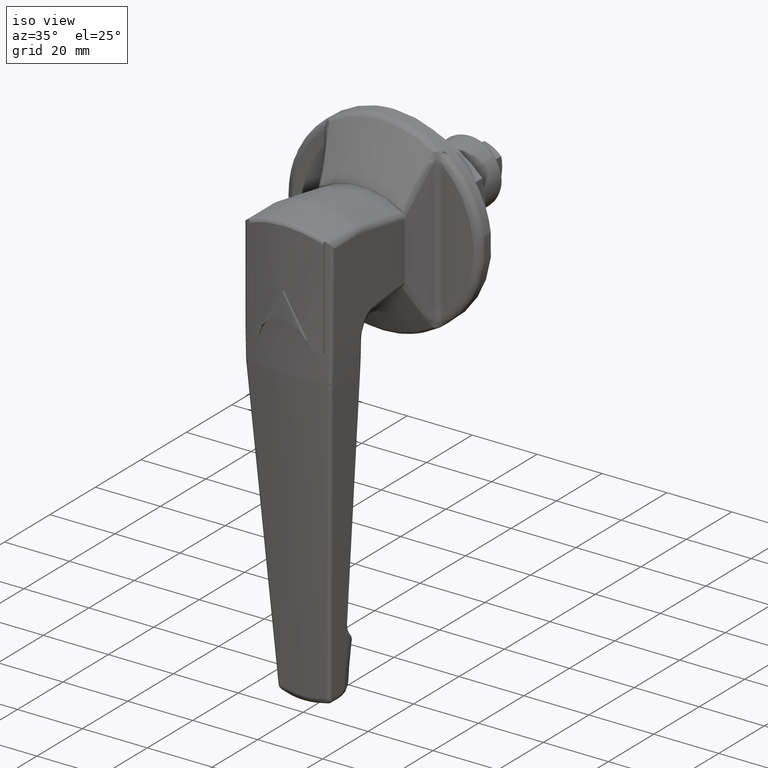
[diagram: clean part render]
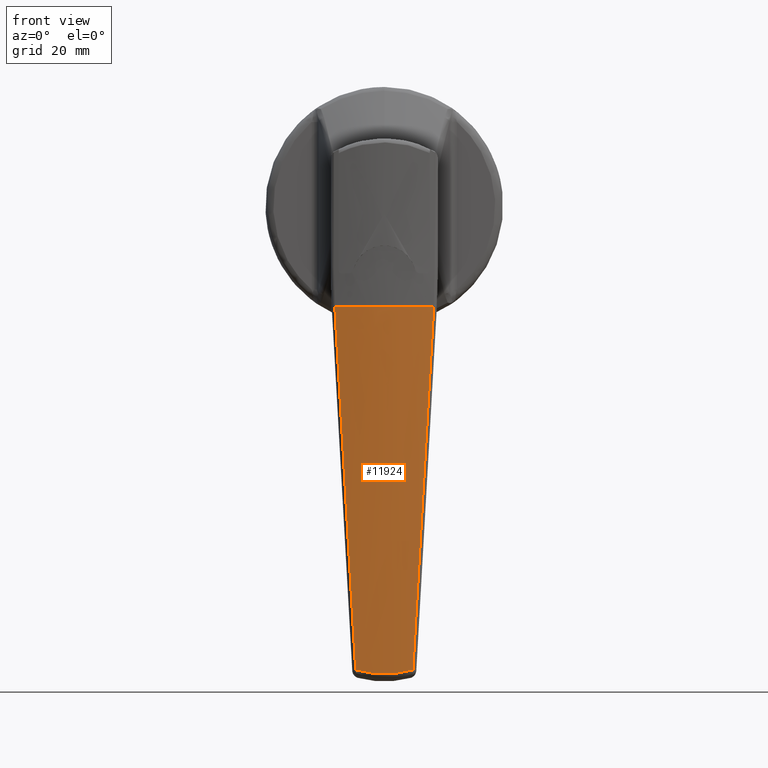
[diagram: tour spotlight — one face highlighted and labeled with its STEP entity id]
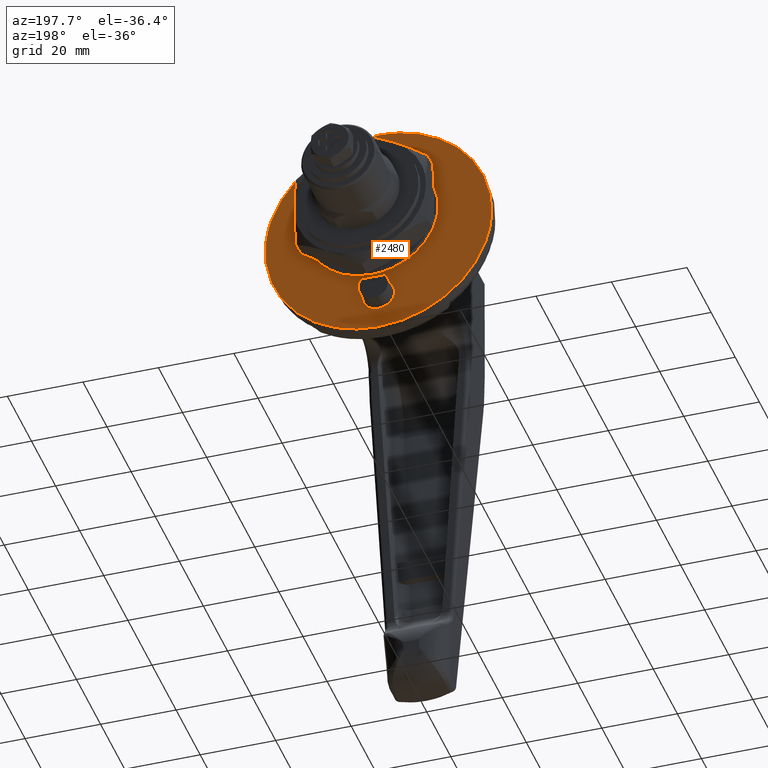
[diagram: tour spotlight — one face highlighted and labeled with its STEP entity id]
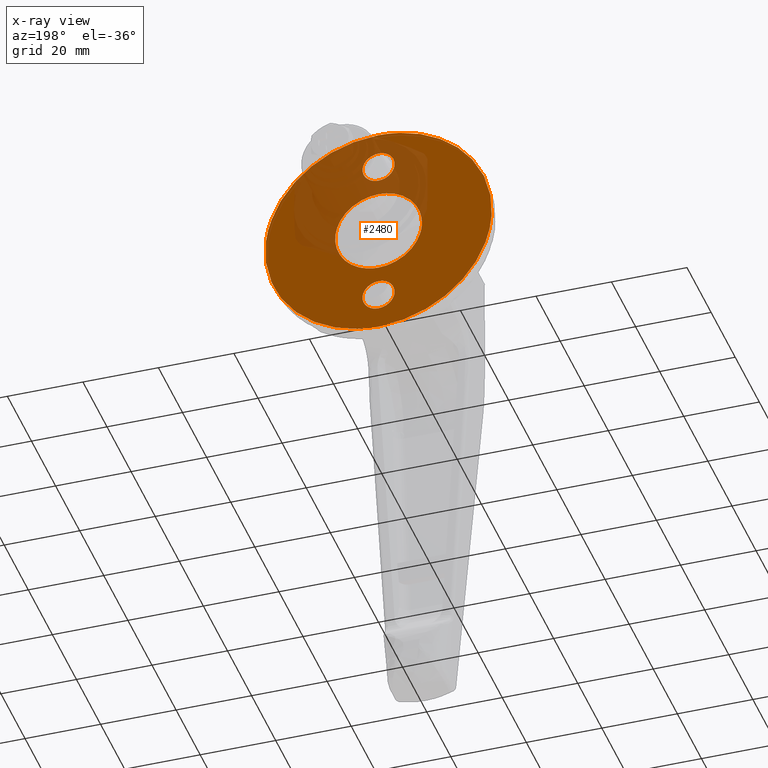
[diagram: x-ray of the same camera — body ghosted, this tour face saturated]
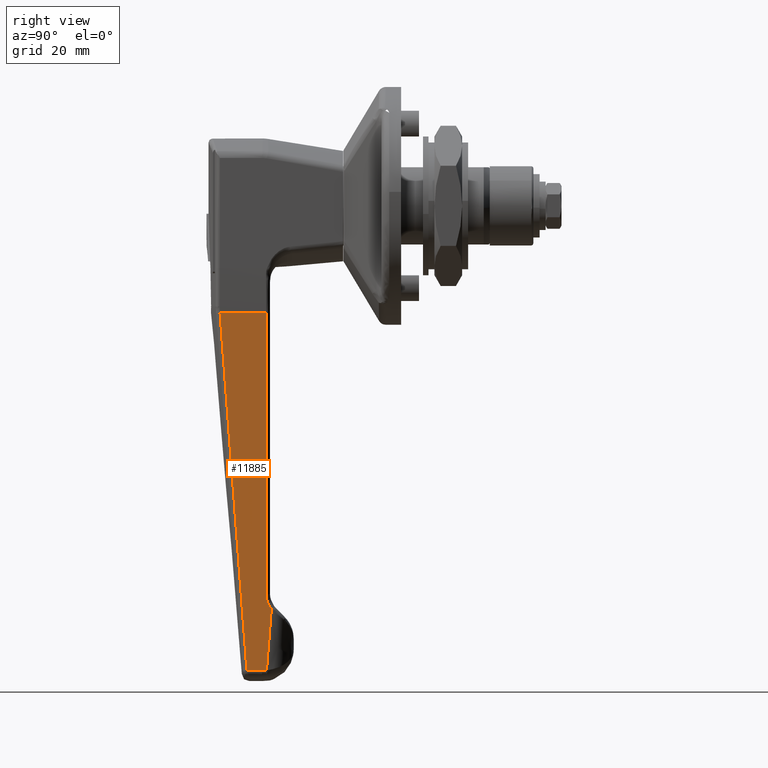
[diagram: tour spotlight — one face highlighted and labeled with its STEP entity id]
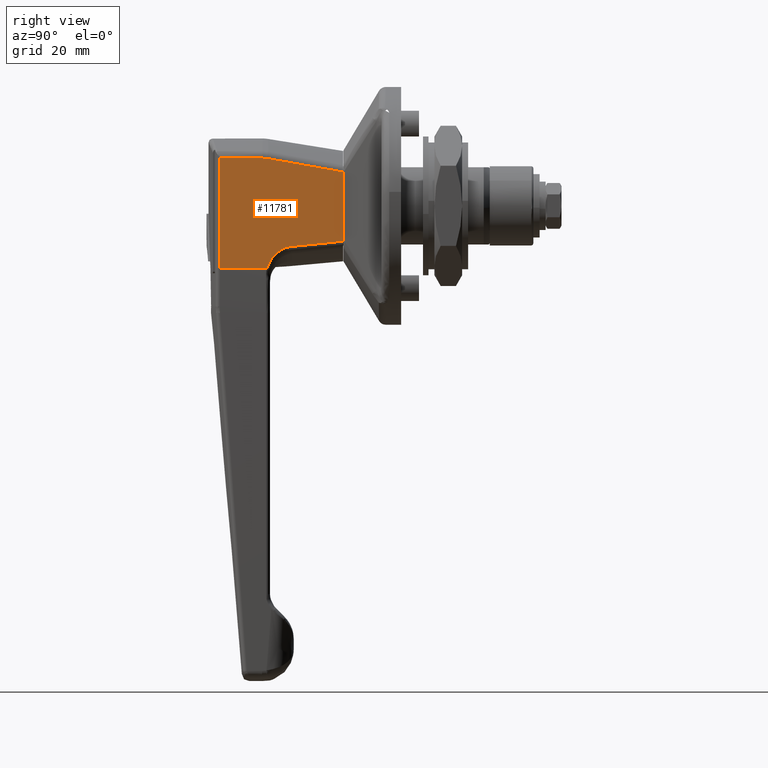
[diagram: tour spotlight — one face highlighted and labeled with its STEP entity id]
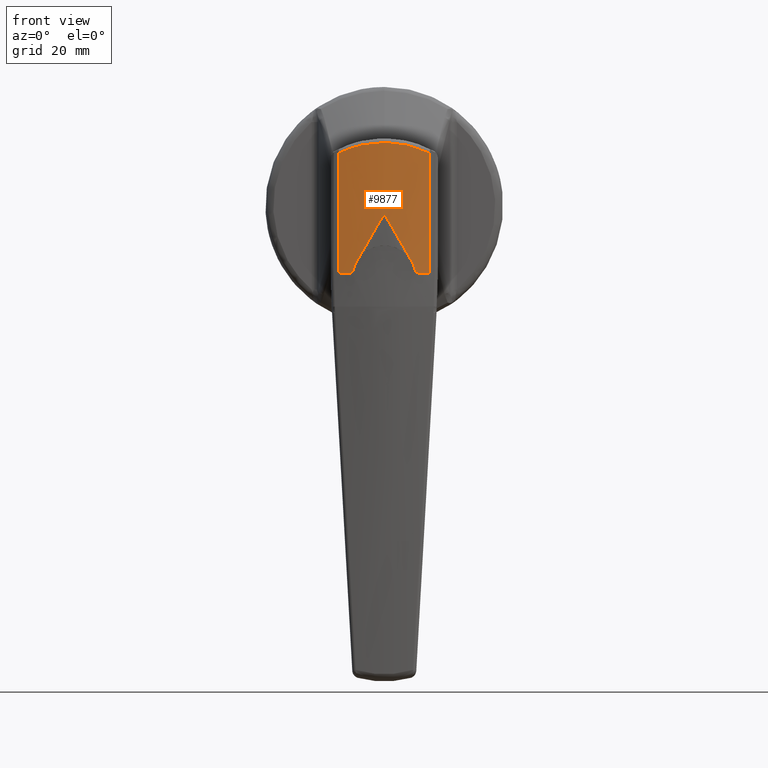
[diagram: tour spotlight — one face highlighted and labeled with its STEP entity id]
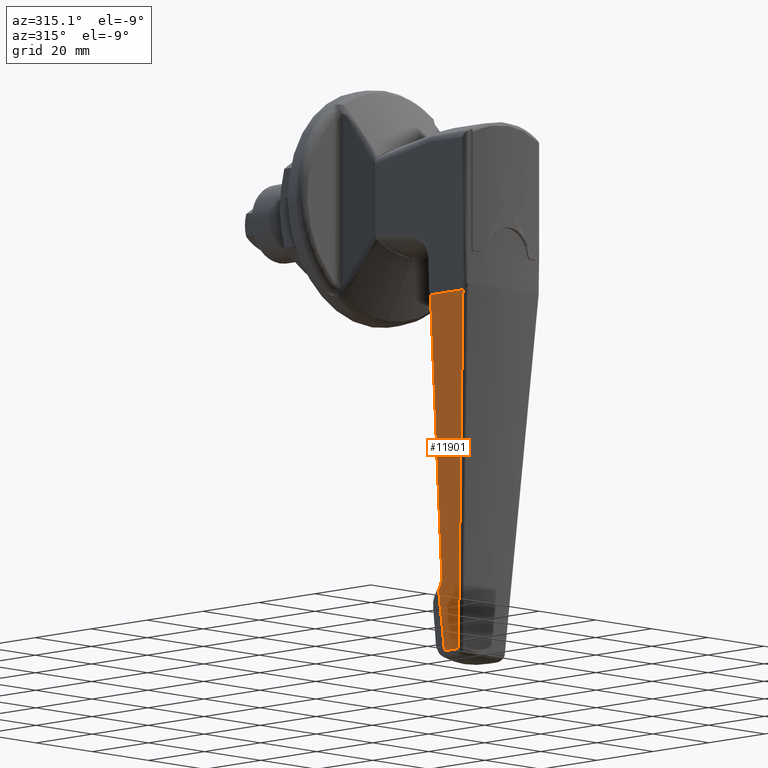
[diagram: tour spotlight — one face highlighted and labeled with its STEP entity id]
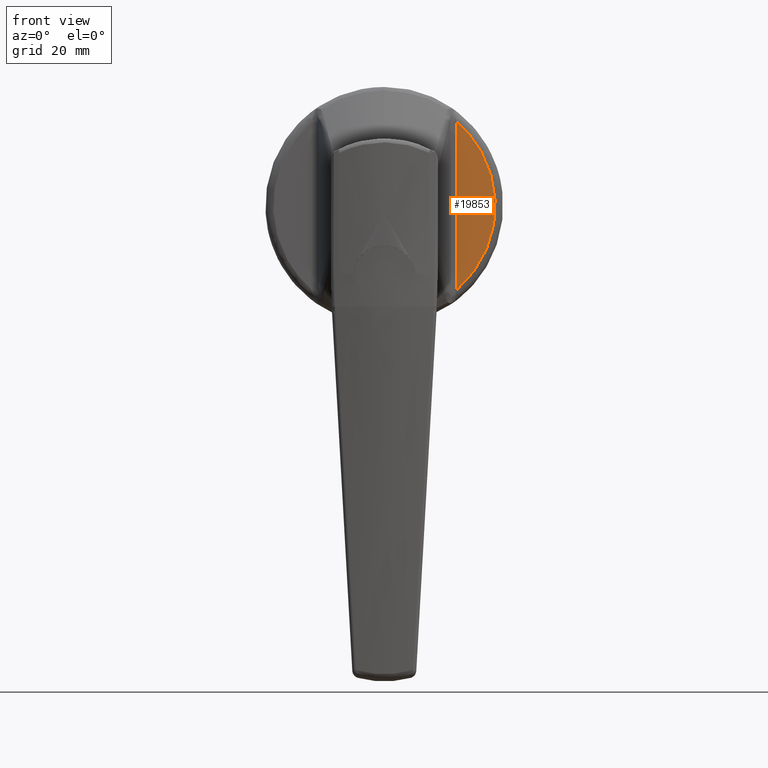
[diagram: tour spotlight — one face highlighted and labeled with its STEP entity id]
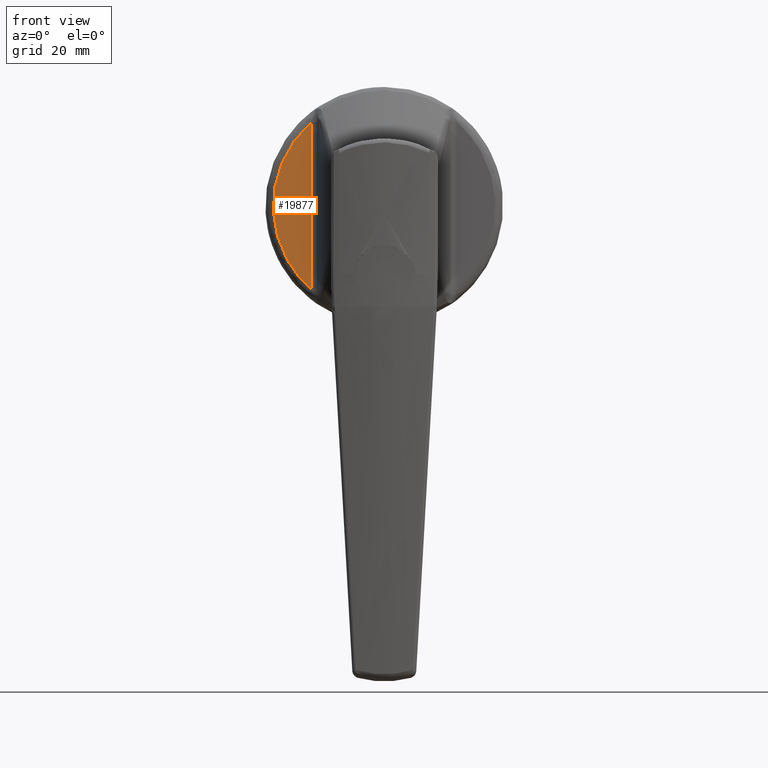
[diagram: tour spotlight — one face highlighted and labeled with its STEP entity id]
A machine part: a face-by-face anatomy tour. The part has 296 B-rep faces; the first image is the clean iso view, then the 8 largest visible faces are spotlighted one at a time (largest first), each with its STEP entity span.

Face 1 — front view, entity #11924. In plain terms, the highlighted face is a freeform B-spline surface patch.
Definition (entity closure, byte-faithful):
#6891=CARTESIAN_POINT('',(-39.909857933490898,7.213790736045410,-117.084794618973010));
#6892=VERTEX_POINT('',#6891);
#6893=CARTESIAN_POINT('',(-39.909857933490848,-7.213790736045429,-117.084794618973210));
#6894=VERTEX_POINT('',#6893);
#6895=CARTESIAN_POINT('',(-39.909857933490898,7.213790736045410,-117.084794618973010));
#6896=CARTESIAN_POINT('',(-39.965843515855482,6.627496043275496,-117.265314138344390));
#6897=CARTESIAN_POINT('',(-40.015422400020782,6.037432898611465,-117.422799866397600));
#6898=CARTESIAN_POINT('',(-40.101143519574478,4.849919290424683,-117.692897461019400));
#6899=CARTESIAN_POINT('',(-40.173429968805053,3.655017708117561,-117.918116204373310));
#6900=CARTESIAN_POINT('',(-40.217692363016852,2.445391861550925,-118.054288793521200));
#6901=CARTESIAN_POINT('',(-40.247386397903689,1.228310382515253,-118.145493331188600));
#6902=CARTESIAN_POINT('',(-40.254949478572968,0.616020772614438,-118.168614020875400));
#6903=CARTESIAN_POINT('',(-40.254948446701739,-0.616146847933066,-118.168610861538800));
#6904=CARTESIAN_POINT('',(-40.247384865291657,-1.228396495509741,-118.145488634921800));
#6905=CARTESIAN_POINT('',(-40.217690462913602,-2.445446443959838,-118.054282946281700));
#6906=CARTESIAN_POINT('',(-40.173427575749479,-3.655046255342052,-117.918111156287590));
#6907=CARTESIAN_POINT('',(-40.101142635036943,-4.849932405872104,-117.692894685629700));
#6908=CARTESIAN_POINT('',(-40.015422139097353,-6.037435651476795,-117.422799032568610));
#6909=CARTESIAN_POINT('',(-39.965843504135862,-6.627496166005619,-117.265314100555900));
#6910=CARTESIAN_POINT('',(-39.909857933490848,-7.213790736045453,-117.084794618973010));
#6911=B_SPLINE_CURVE_WITH_KNOTS('',3,(#6895,#6896,#6897,#6898,#6899,#6900,#6901,#6902,#6903,#6904,#6905,#6906,#6907,#6908,#6909,#6910),.UNSPECIFIED.,.F.,.U.,(4,2,1,2,2,2,1,2,4),(0.0,0.125000000000000,0.250000000000000,0.375000000000000,0.500000000000000,0.625000000000000,0.750000000000000,0.875000000000000,1.0),.UNSPECIFIED.);
#6912=EDGE_CURVE('',#6892,#6894,#6911,.T.);
#7845=CARTESIAN_POINT('',(-46.785711378948093,-12.473112755895841,-25.431464014060850));
#7846=VERTEX_POINT('',#7845);
#7877=CARTESIAN_POINT('',(-46.785711378948093,12.473112755895841,-25.431464014060751));
#7878=VERTEX_POINT('',#7877);
#7892=CARTESIAN_POINT('',(-46.785711378948093,-12.473112755895841,-25.431464014060850));
#7893=CARTESIAN_POINT('',(-49.436443152901298,4.163336E-014,-25.545265562781950));
#7894=CARTESIAN_POINT('',(-46.785711378948093,12.473112755895841,-25.431464014060751));
#7902=(BOUNDED_CURVE()B_SPLINE_CURVE(2,(#7892,#7893,#7894),.UNSPECIFIED.,.F.,.U.)CURVE()GEOMETRIC_REPRESENTATION_ITEM()QUASI_UNIFORM_CURVE()RATIONAL_B_SPLINE_CURVE((1.0,0.978153228478527,1.0))REPRESENTATION_ITEM(''));
#7903=EDGE_CURVE('',#7846,#7878,#7902,.T.);
#8125=CARTESIAN_POINT('',(-46.671376794683603,12.389688932985900,-26.992386918501399));
#8126=VERTEX_POINT('',#8125);
#8140=CARTESIAN_POINT('',(-46.785711378948093,12.473112755895841,-25.431464014060751));
#8141=CARTESIAN_POINT('',(-46.747170335792632,12.447384159813049,-25.951851318711050));
#8142=CARTESIAN_POINT('',(-46.709061837354817,12.419576423002461,-26.472159186351970));
#8143=CARTESIAN_POINT('',(-46.671376794683603,12.389688932985900,-26.992386918501399));
#8144=QUASI_UNIFORM_CURVE('',3,(#8140,#8141,#8142,#8143),.UNSPECIFIED.,.F.,.U.);
#8145=EDGE_CURVE('',#7878,#8126,#8144,.T.);
#8178=CARTESIAN_POINT('',(-46.671376794683603,-12.389688932985900,-26.992386918501602));
#8179=VERTEX_POINT('',#8178);
#8203=CARTESIAN_POINT('',(-46.671376794683603,-12.389688932985880,-26.992386918501602));
#8204=CARTESIAN_POINT('',(-46.709061837354817,-12.419576423002439,-26.472159186352140));
#8205=CARTESIAN_POINT('',(-46.747170335792617,-12.447384159813030,-25.951851318711189));
#8206=CARTESIAN_POINT('',(-46.785711378948093,-12.473112755895819,-25.431464014060850));
#8207=QUASI_UNIFORM_CURVE('',3,(#8203,#8204,#8205,#8206),.UNSPECIFIED.,.F.,.U.);
#8208=EDGE_CURVE('',#8179,#7846,#8207,.T.);
#8410=CARTESIAN_POINT('',(-46.671376794683603,12.389688932985900,-26.992386918501399));
#8411=CARTESIAN_POINT('',(-43.431909587914078,9.820511961474951,-71.712004010442200));
#8412=CARTESIAN_POINT('',(-39.909857933490898,7.213790736045410,-117.084794618973010));
#8420=(BOUNDED_CURVE()B_SPLINE_CURVE(2,(#8410,#8411,#8412),.UNSPECIFIED.,.F.,.U.)CURVE()GEOMETRIC_REPRESENTATION_ITEM()QUASI_UNIFORM_CURVE()RATIONAL_B_SPLINE_CURVE((1.0,0.999043781706573,1.0))REPRESENTATION_ITEM(''));
#8421=EDGE_CURVE('',#8126,#6892,#8420,.T.);
#8475=CARTESIAN_POINT('',(-39.909857933490827,-7.213790736045418,-117.084794618973310));
#8476=CARTESIAN_POINT('',(-43.431909587914241,-9.820511961475102,-71.712004010439870));
#8477=CARTESIAN_POINT('',(-46.671376794683603,-12.389688932985900,-26.992386918501602));
#8485=(BOUNDED_CURVE()B_SPLINE_CURVE(2,(#8475,#8476,#8477),.UNSPECIFIED.,.F.,.U.)CURVE()GEOMETRIC_REPRESENTATION_ITEM()QUASI_UNIFORM_CURVE()RATIONAL_B_SPLINE_CURVE((1.0,0.999043781706486,1.0))REPRESENTATION_ITEM(''));
#8486=EDGE_CURVE('',#6894,#8179,#8485,.T.);
#11902=CARTESIAN_POINT('',(-46.715993278810821,13.687617565856964,-23.037332219717879));
#11903=CARTESIAN_POINT('',(-38.477526869705727,13.687617565856964,-120.410177636956530));
#11904=CARTESIAN_POINT('',(-49.911704302739508,-0.000204496160791,-23.307713123254477));
#11905=CARTESIAN_POINT('',(-41.673237893634422,-0.000204496160792,-120.680558540493250));
#11906=CARTESIAN_POINT('',(-46.715902759079732,-13.688005272834207,-23.037324561075870));
#11907=CARTESIAN_POINT('',(-38.477436349974646,-13.688005272834207,-120.410169978314530));
#11915=(BOUNDED_SURFACE()B_SPLINE_SURFACE(1,2,((#11902,#11904,#11906),(#11903,#11905,#11907)),.UNSPECIFIED.,.F.,.F.,.U.)B_SPLINE_SURFACE_WITH_KNOTS((2,2),(3,3),(0.0,97.720741674546346),(0.0,27.741383964731870),.UNSPECIFIED.)GEOMETRIC_REPRESENTATION_ITEM()RATIONAL_B_SPLINE_SURFACE(((0.997388975650527,0.970926280731550,0.997055853653611),(0.997388975650527,0.970926280731550,0.997055853653611)))REPRESENTATION_ITEM('')SURFACE());
#11916=ORIENTED_EDGE('',*,*,#8421,.T.);
#11917=ORIENTED_EDGE('',*,*,#6912,.T.);
#11918=ORIENTED_EDGE('',*,*,#8486,.T.);
#11919=ORIENTED_EDGE('',*,*,#8208,.T.);
#11920=ORIENTED_EDGE('',*,*,#7903,.T.);
#11921=ORIENTED_EDGE('',*,*,#8145,.T.);
#11922=EDGE_LOOP('',(#11916,#11917,#11918,#11919,#11920,#11921));
#11923=FACE_OUTER_BOUND('',#11922,.T.);
#11924=ADVANCED_FACE('',(#11923),#11915,.T.);

Face 2 — auxiliary view, entity #2480. An x-ray twin of the same camera follows (body ghosted, this face saturated) — the face is partly hidden behind the body. In plain terms, the highlighted face is a freeform B-spline surface patch.
Definition (entity closure, byte-faithful):
#1729=CARTESIAN_POINT('',(-1.060783E-011,-29.790290636046912,3.540986207848234));
#1730=VERTEX_POINT('',#1729);
#1731=CARTESIAN_POINT('',(0.0,0.0,-30.000000069754488));
#1732=VERTEX_POINT('',#1731);
#1733=CARTESIAN_POINT('',(-1.060783E-011,-29.790290636046908,3.540986207848234));
#1734=CARTESIAN_POINT('',(0.0,-30.0,1.776702923291119));
#1735=CARTESIAN_POINT('',(0.0,-30.0,-0.000000069754492));
#1736=CARTESIAN_POINT('',(0.0,-29.999999999999993,-30.000000069754478));
#1737=CARTESIAN_POINT('',(0.0,0.0,-30.000000069754488));
#1745=(BOUNDED_CURVE()B_SPLINE_CURVE(2,(#1733,#1734,#1735,#1736,#1737),.UNSPECIFIED.,.F.,.U.)B_SPLINE_CURVE_WITH_KNOTS((3,2,3),(0.229562704763104,0.250000000000000,0.500000000000000),.UNSPECIFIED.)CURVE()GEOMETRIC_REPRESENTATION_ITEM()RATIONAL_B_SPLINE_CURVE((0.956027207442871,0.976056219256898,1.0,0.707106781186547,1.0))REPRESENTATION_ITEM(''));
#1746=EDGE_CURVE('',#1730,#1732,#1745,.T.);
#1787=CARTESIAN_POINT('',(2.946005E-012,29.944045039688021,-1.831438482810666));
#1788=VERTEX_POINT('',#1787);
#1794=CARTESIAN_POINT('',(0.0,0.0,-30.000000069754488));
#1795=CARTESIAN_POINT('',(0.0,28.221198788878148,-30.000000069754496));
#1796=CARTESIAN_POINT('',(2.946005E-012,29.944045039688028,-1.831438482810666));
#1804=(BOUNDED_CURVE()B_SPLINE_CURVE(2,(#1794,#1795,#1796),.UNSPECIFIED.,.F.,.U.)B_SPLINE_CURVE_WITH_KNOTS((3,3),(0.500000000000000,0.739333064655407),.UNSPECIFIED.)CURVE()GEOMETRIC_REPRESENTATION_ITEM()RATIONAL_B_SPLINE_CURVE((1.0,0.719603873298358,0.976072261164795))REPRESENTATION_ITEM(''));
#1805=EDGE_CURVE('',#1732,#1788,#1804,.T.);
#1828=CARTESIAN_POINT('',(0.0,0.0,29.999999930245512));
#1829=VERTEX_POINT('',#1828);
#1830=CARTESIAN_POINT('',(0.0,0.0,29.999999930245512));
#1831=CARTESIAN_POINT('',(0.0,-26.645272493937874,29.999999930245497));
#1832=CARTESIAN_POINT('',(-1.060783E-011,-29.790290636046908,3.540986207848234));
#1840=(BOUNDED_CURVE()B_SPLINE_CURVE(2,(#1830,#1831,#1832),.UNSPECIFIED.,.F.,.U.)B_SPLINE_CURVE_WITH_KNOTS((3,3),(0.0,0.229562704763104),.UNSPECIFIED.)CURVE()GEOMETRIC_REPRESENTATION_ITEM()RATIONAL_B_SPLINE_CURVE((1.0,0.731050561929649,0.956027207442871))REPRESENTATION_ITEM(''));
#1841=EDGE_CURVE('',#1829,#1730,#1840,.T.);
#1843=CARTESIAN_POINT('',(2.946005E-012,29.944045039688028,-1.831438482810666));
#1844=CARTESIAN_POINT('',(0.0,30.0,-0.916574057300928));
#1845=CARTESIAN_POINT('',(0.0,30.0,-0.000000069754492));
#1846=CARTESIAN_POINT('',(0.0,29.999999999999993,29.999999930245508));
#1847=CARTESIAN_POINT('',(0.0,0.0,29.999999930245512));
#1855=(BOUNDED_CURVE()B_SPLINE_CURVE(2,(#1843,#1844,#1845,#1846,#1847),.UNSPECIFIED.,.F.,.U.)B_SPLINE_CURVE_WITH_KNOTS((3,2,3),(0.739333064655407,0.750000000000000,1.0),.UNSPECIFIED.)CURVE()GEOMETRIC_REPRESENTATION_ITEM()RATIONAL_B_SPLINE_CURVE((0.976072261164795,0.987502907888189,1.0,0.707106781186547,1.0))REPRESENTATION_ITEM(''));
#1856=EDGE_CURVE('',#1788,#1829,#1855,.T.);
#1915=CARTESIAN_POINT('',(1.597178E-017,-11.419609553163440,1.357393698710279));
#1916=VERTEX_POINT('',#1915);
#1917=CARTESIAN_POINT('',(0.0,0.0,-11.500000000000000));
#1918=VERTEX_POINT('',#1917);
#1919=CARTESIAN_POINT('',(1.597178E-017,-11.419609553163438,1.357393698710280));
#1920=CARTESIAN_POINT('',(0.0,-11.499999999999996,0.681077376156188));
#1921=CARTESIAN_POINT('',(0.0,-11.500000000000000,0.0));
#1922=CARTESIAN_POINT('',(0.0,-11.500000000000000,-11.500000000000000));
#1923=CARTESIAN_POINT('',(0.0,0.0,-11.500000000000000));
#1931=(BOUNDED_CURVE()B_SPLINE_CURVE(2,(#1919,#1920,#1921,#1922,#1923),.UNSPECIFIED.,.F.,.U.)B_SPLINE_CURVE_WITH_KNOTS((3,2,3),(0.229562473510981,0.250000000000000,0.500000000000000),.UNSPECIFIED.)CURVE()GEOMETRIC_REPRESENTATION_ITEM()RATIONAL_B_SPLINE_CURVE((0.956026754178745,0.976055948328184,1.0,0.707106781186548,1.0))REPRESENTATION_ITEM(''));
#1932=EDGE_CURVE('',#1916,#1918,#1931,.T.);
#1934=CARTESIAN_POINT('',(1.387779E-017,11.478550181837401,-0.702058204880966));
#1935=VERTEX_POINT('',#1934);
#1936=CARTESIAN_POINT('',(0.0,0.0,-11.500000000000000));
#1937=CARTESIAN_POINT('',(0.0,10.818119768980949,-11.499999999999998));
#1938=CARTESIAN_POINT('',(1.387779E-017,11.478550181837393,-0.702058204880966));
#1946=(BOUNDED_CURVE()B_SPLINE_CURVE(2,(#1936,#1937,#1938),.UNSPECIFIED.,.F.,.U.)B_SPLINE_CURVE_WITH_KNOTS((3,3),(0.500000000000000,0.739332962235050),.UNSPECIFIED.)CURVE()GEOMETRIC_REPRESENTATION_ITEM()RATIONAL_B_SPLINE_CURVE((1.0,0.719603993291271,0.976072041658375))REPRESENTATION_ITEM(''));
#1947=EDGE_CURVE('',#1918,#1935,#1946,.T.);
#2014=CARTESIAN_POINT('',(0.0,0.0,11.500000000000000));
#2015=VERTEX_POINT('',#2014);
#2016=CARTESIAN_POINT('',(0.0,0.0,11.500000000000000));
#2017=CARTESIAN_POINT('',(0.0,-10.214007048156901,11.499999999999998));
#2018=CARTESIAN_POINT('',(1.597178E-017,-11.419609553163435,1.357393698710279));
#2026=(BOUNDED_CURVE()B_SPLINE_CURVE(2,(#2016,#2017,#2018),.UNSPECIFIED.,.F.,.U.)B_SPLINE_CURVE_WITH_KNOTS((3,3),(0.0,0.229562473510981),.UNSPECIFIED.)CURVE()GEOMETRIC_REPRESENTATION_ITEM()RATIONAL_B_SPLINE_CURVE((1.0,0.731050832858364,0.956026754178745))REPRESENTATION_ITEM(''));
#2027=EDGE_CURVE('',#2015,#1916,#2026,.T.);
#2061=CARTESIAN_POINT('',(1.387779E-017,11.478550181837399,-0.702058204880966));
#2062=CARTESIAN_POINT('',(0.0,11.499999999999996,-0.351356778164529));
#2063=CARTESIAN_POINT('',(0.0,11.500000000000000,0.0));
#2064=CARTESIAN_POINT('',(0.0,11.500000000000000,11.500000000000000));
#2065=CARTESIAN_POINT('',(0.0,0.0,11.500000000000000));
#2073=(BOUNDED_CURVE()B_SPLINE_CURVE(2,(#2061,#2062,#2063,#2064,#2065),.UNSPECIFIED.,.F.,.U.)B_SPLINE_CURVE_WITH_KNOTS((3,2,3),(0.739332962235050,0.750000000000000,1.0),.UNSPECIFIED.)CURVE()GEOMETRIC_REPRESENTATION_ITEM()RATIONAL_B_SPLINE_CURVE((0.976072041658375,0.987502787895277,1.0,0.707106781186548,1.0))REPRESENTATION_ITEM(''));
#2074=EDGE_CURVE('',#1935,#2015,#2073,.T.);
#2101=CARTESIAN_POINT('',(1.597178E-017,-4.220290471602029,20.501645557461671));
#2102=VERTEX_POINT('',#2101);
#2103=CARTESIAN_POINT('',(0.0,0.0,15.749999930245499));
#2104=VERTEX_POINT('',#2103);
#2105=CARTESIAN_POINT('',(1.597178E-017,-4.220290471602029,20.501645557461668));
#2106=CARTESIAN_POINT('',(0.0,-4.250000000000000,20.251702570064619));
#2107=CARTESIAN_POINT('',(0.0,-4.250000000000000,19.999999930245501));
#2108=CARTESIAN_POINT('',(0.0,-4.249999999999999,15.749999930245508));
#2109=CARTESIAN_POINT('',(0.0,0.0,15.749999930245499));
#2117=(BOUNDED_CURVE()B_SPLINE_CURVE(2,(#2105,#2106,#2107,#2108,#2109),.UNSPECIFIED.,.F.,.U.)B_SPLINE_CURVE_WITH_KNOTS((3,2,3),(0.229562463109850,0.250000000000000,0.500000000000000),.UNSPECIFIED.)CURVE()GEOMETRIC_REPRESENTATION_ITEM()RATIONAL_B_SPLINE_CURVE((0.956026733792104,0.976055936142501,1.0,0.707106781186548,1.0))REPRESENTATION_ITEM(''));
#2118=EDGE_CURVE('',#2102,#2104,#2117,.T.);
#2120=CARTESIAN_POINT('',(-1.023487E-016,4.242072893244577,19.740543636431742));
#2121=VERTEX_POINT('',#2120);
#2122=CARTESIAN_POINT('',(0.0,0.0,15.749999930245499));
#2123=CARTESIAN_POINT('',(0.0,3.998000782856122,15.749999930245503));
#2124=CARTESIAN_POINT('',(-1.023487E-016,4.242072893244577,19.740543636431735));
#2132=(BOUNDED_CURVE()B_SPLINE_CURVE(2,(#2122,#2123,#2124),.UNSPECIFIED.,.F.,.U.)B_SPLINE_CURVE_WITH_KNOTS((3,3),(0.500000000000000,0.739332962177650),.UNSPECIFIED.)CURVE()GEOMETRIC_REPRESENTATION_ITEM()RATIONAL_B_SPLINE_CURVE((1.0,0.719603993358520,0.976072041535355))REPRESENTATION_ITEM(''));
#2133=EDGE_CURVE('',#2104,#2121,#2132,.T.);
#2200=CARTESIAN_POINT('',(0.0,0.0,24.249999930245501));
#2201=VERTEX_POINT('',#2200);
#2202=CARTESIAN_POINT('',(0.0,0.0,24.249999930245501));
#2203=CARTESIAN_POINT('',(0.0,-3.774741501240422,24.249999930245504));
#2204=CARTESIAN_POINT('',(1.597178E-017,-4.220290471602029,20.501645557461664));
#2212=(BOUNDED_CURVE()B_SPLINE_CURVE(2,(#2202,#2203,#2204),.UNSPECIFIED.,.F.,.U.)B_SPLINE_CURVE_WITH_KNOTS((3,3),(0.0,0.229562463109850),.UNSPECIFIED.)CURVE()GEOMETRIC_REPRESENTATION_ITEM()RATIONAL_B_SPLINE_CURVE((1.0,0.731050845044047,0.956026733792104))REPRESENTATION_ITEM(''));
#2213=EDGE_CURVE('',#2201,#2102,#2212,.T.);
#2247=CARTESIAN_POINT('',(-1.023487E-016,4.242072893244577,19.740543636431731));
#2248=CARTESIAN_POINT('',(0.0,4.250000000000000,19.870150685433661));
#2249=CARTESIAN_POINT('',(0.0,4.250000000000000,19.999999930245501));
#2250=CARTESIAN_POINT('',(0.0,4.249999999999999,24.249999930245504));
#2251=CARTESIAN_POINT('',(0.0,0.0,24.249999930245501));
#2259=(BOUNDED_CURVE()B_SPLINE_CURVE(2,(#2247,#2248,#2249,#2250,#2251),.UNSPECIFIED.,.F.,.U.)B_SPLINE_CURVE_WITH_KNOTS((3,2,3),(0.739332962177651,0.750000000000000,1.0),.UNSPECIFIED.)CURVE()GEOMETRIC_REPRESENTATION_ITEM()RATIONAL_B_SPLINE_CURVE((0.976072041535357,0.987502787828029,1.0,0.707106781186548,1.0))REPRESENTATION_ITEM(''));
#2260=EDGE_CURVE('',#2121,#2201,#2259,.T.);
#2287=CARTESIAN_POINT('',(1.597178E-017,-4.220290471602029,-19.498354442538290));
#2288=VERTEX_POINT('',#2287);
#2289=CARTESIAN_POINT('',(0.0,0.0,-24.250000069754449));
#2290=VERTEX_POINT('',#2289);
#2291=CARTESIAN_POINT('',(1.597178E-017,-4.220290471602029,-19.498354442538293));
#2292=CARTESIAN_POINT('',(0.0,-4.250000000000000,-19.748297429935334));
#2293=CARTESIAN_POINT('',(0.0,-4.250000000000000,-20.000000069754449));
#2294=CARTESIAN_POINT('',(0.0,-4.249999999999999,-24.250000069754442));
#2295=CARTESIAN_POINT('',(0.0,0.0,-24.250000069754449));
#2303=(BOUNDED_CURVE()B_SPLINE_CURVE(2,(#2291,#2292,#2293,#2294,#2295),.UNSPECIFIED.,.F.,.U.)B_SPLINE_CURVE_WITH_KNOTS((3,2,3),(0.229562463109850,0.250000000000000,0.500000000000000),.UNSPECIFIED.)CURVE()GEOMETRIC_REPRESENTATION_ITEM()RATIONAL_B_SPLINE_CURVE((0.956026733792104,0.976055936142501,1.0,0.707106781186548,1.0))REPRESENTATION_ITEM(''));
#2304=EDGE_CURVE('',#2288,#2290,#2303,.T.);
#2306=CARTESIAN_POINT('',(-1.023487E-016,4.242072893244577,-20.259456363568219));
#2307=VERTEX_POINT('',#2306);
#2308=CARTESIAN_POINT('',(0.0,0.0,-24.250000069754449));
#2309=CARTESIAN_POINT('',(0.0,3.998000782856122,-24.250000069754446));
#2310=CARTESIAN_POINT('',(-1.023487E-016,4.242072893244577,-20.259456363568216));
#2318=(BOUNDED_CURVE()B_SPLINE_CURVE(2,(#2308,#2309,#2310),.UNSPECIFIED.,.F.,.U.)B_SPLINE_CURVE_WITH_KNOTS((3,3),(0.500000000000000,0.739332962177650),.UNSPECIFIED.)CURVE()GEOMETRIC_REPRESENTATION_ITEM()RATIONAL_B_SPLINE_CURVE((1.0,0.719603993358520,0.976072041535355))REPRESENTATION_ITEM(''));
#2319=EDGE_CURVE('',#2290,#2307,#2318,.T.);
#2386=CARTESIAN_POINT('',(0.0,0.0,-15.750000069754449));
#2387=VERTEX_POINT('',#2386);
#2388=CARTESIAN_POINT('',(0.0,0.0,-15.750000069754449));
#2389=CARTESIAN_POINT('',(0.0,-3.774741501240422,-15.750000069754456));
#2390=CARTESIAN_POINT('',(1.597178E-017,-4.220290471602029,-19.498354442538282));
#2398=(BOUNDED_CURVE()B_SPLINE_CURVE(2,(#2388,#2389,#2390),.UNSPECIFIED.,.F.,.U.)B_SPLINE_CURVE_WITH_KNOTS((3,3),(0.0,0.229562463109850),.UNSPECIFIED.)CURVE()GEOMETRIC_REPRESENTATION_ITEM()RATIONAL_B_SPLINE_CURVE((1.0,0.731050845044047,0.956026733792104))REPRESENTATION_ITEM(''));
#2399=EDGE_CURVE('',#2387,#2288,#2398,.T.);
#2433=CARTESIAN_POINT('',(-1.023487E-016,4.242072893244577,-20.259456363568216));
#2434=CARTESIAN_POINT('',(0.0,4.250000000000000,-20.129849314566300));
#2435=CARTESIAN_POINT('',(0.0,4.250000000000000,-20.000000069754449));
#2436=CARTESIAN_POINT('',(0.0,4.249999999999999,-15.750000069754451));
#2437=CARTESIAN_POINT('',(0.0,0.0,-15.750000069754449));
#2445=(BOUNDED_CURVE()B_SPLINE_CURVE(2,(#2433,#2434,#2435,#2436,#2437),.UNSPECIFIED.,.F.,.U.)B_SPLINE_CURVE_WITH_KNOTS((3,2,3),(0.739332962177651,0.750000000000000,1.0),.UNSPECIFIED.)CURVE()GEOMETRIC_REPRESENTATION_ITEM()RATIONAL_B_SPLINE_CURVE((0.976072041535357,0.987502787828029,1.0,0.707106781186548,1.0))REPRESENTATION_ITEM(''));
#2446=EDGE_CURVE('',#2307,#2387,#2445,.T.);
#2451=CARTESIAN_POINT('',(0.0,-32.996455936065232,32.996999813953870));
#2452=CARTESIAN_POINT('',(0.0,32.996269790759591,32.996999813953870));
#2453=CARTESIAN_POINT('',(0.0,-32.996455936065232,-32.997001562788249));
#2454=CARTESIAN_POINT('',(0.0,32.996269790759591,-32.997001562788249));
#2455=B_SPLINE_SURFACE_WITH_KNOTS('',1,1,((#2451,#2453),(#2452,#2454)),.UNSPECIFIED.,.F.,.F.,.U.,(2,2),(2,2),(0.0,65.992725726824830),(0.0,65.994001376742119),.UNSPECIFIED.);
#2456=ORIENTED_EDGE('',*,*,#1841,.T.);
#2457=ORIENTED_EDGE('',*,*,#1746,.T.);
#2458=ORIENTED_EDGE('',*,*,#1805,.T.);
#2459=ORIENTED_EDGE('',*,*,#1856,.T.);
#2460=EDGE_LOOP('',(#2456,#2457,#2458,#2459));
#2461=FACE_OUTER_BOUND('',#2460,.T.);
#2462=ORIENTED_EDGE('',*,*,#2319,.F.);
#2463=ORIENTED_EDGE('',*,*,#2304,.F.);
#2464=ORIENTED_EDGE('',*,*,#2399,.F.);
#2465=ORIENTED_EDGE('',*,*,#2446,.F.);
#2466=EDGE_LOOP('',(#2462,#2463,#2464,#2465));
#2467=FACE_BOUND('',#2466,.T.);
#2468=ORIENTED_EDGE('',*,*,#2133,.F.);
#2469=ORIENTED_EDGE('',*,*,#2118,.F.);
#2470=ORIENTED_EDGE('',*,*,#2213,.F.);
#2471=ORIENTED_EDGE('',*,*,#2260,.F.);
#2472=EDGE_LOOP('',(#2468,#2469,#2470,#2471));
#2473=FACE_BOUND('',#2472,.T.);
#2474=ORIENTED_EDGE('',*,*,#1947,.F.);
#2475=ORIENTED_EDGE('',*,*,#1932,.F.);
#2476=ORIENTED_EDGE('',*,*,#2027,.F.);
#2477=ORIENTED_EDGE('',*,*,#2074,.F.);
#2478=EDGE_LOOP('',(#2474,#2475,#2476,#2477));
#2479=FACE_BOUND('',#2478,.T.);
#2480=ADVANCED_FACE('',(#2461,#2467,#2473,#2479),#2455,.F.);

Face 3 — right view, entity #11885. In plain terms, the highlighted face is a freeform B-spline surface patch.
Definition (entity closure, byte-faithful):
#4928=CARTESIAN_POINT('',(-34.100000000000001,-13.181602128076520,-26.966301984448300));
#4929=VERTEX_POINT('',#4928);
#4989=CARTESIAN_POINT('',(-34.100000000000001,-9.169436359756171,-97.985336481314206));
#4990=VERTEX_POINT('',#4989);
#5012=CARTESIAN_POINT('',(-34.100000000000001,-9.169436359756171,-97.985336481314206));
#5013=CARTESIAN_POINT('',(-34.100000000000001,-13.181602128076520,-26.966301984448300));
#5014=QUASI_UNIFORM_CURVE('',1,(#5012,#5013),.UNSPECIFIED.,.F.,.U.);
#5015=EDGE_CURVE('',#4990,#4929,#5014,.T.);
#5078=CARTESIAN_POINT('',(-32.765593022223747,-8.956308236593459,-101.757900828144800));
#5079=VERTEX_POINT('',#5078);
#5111=CARTESIAN_POINT('',(-32.765593022223712,-8.956308236593534,-101.757900828144800));
#5112=CARTESIAN_POINT('',(-34.099999945224837,-9.049539718554089,-100.107617610579150));
#5113=CARTESIAN_POINT('',(-34.100000000000001,-9.169436359756171,-97.985336481314206));
#5121=(BOUNDED_CURVE()B_SPLINE_CURVE(2,(#5111,#5112,#5113),.UNSPECIFIED.,.F.,.U.)CURVE()GEOMETRIC_REPRESENTATION_ITEM()QUASI_UNIFORM_CURVE()RATIONAL_B_SPLINE_CURVE((1.0,0.942761595862212,1.0))REPRESENTATION_ITEM(''));
#5122=EDGE_CURVE('',#5079,#4990,#5121,.T.);
#7063=CARTESIAN_POINT('',(-38.876013490303087,-8.078599781652260,-117.294149986105400));
#7064=VERTEX_POINT('',#7063);
#7126=CARTESIAN_POINT('',(-38.920646132916801,-8.091968901085080,-117.057504241882000));
#7127=VERTEX_POINT('',#7126);
#7128=CARTESIAN_POINT('',(-38.920646132916801,-8.091968901085080,-117.057504241882000));
#7129=CARTESIAN_POINT('',(-38.914387792955779,-8.087420981500705,-117.138006613045700));
#7130=CARTESIAN_POINT('',(-38.899625518460681,-8.082963384016882,-117.216910199726000));
#7131=CARTESIAN_POINT('',(-38.876013490303087,-8.078599781652260,-117.294149986105400));
#7132=QUASI_UNIFORM_CURVE('',3,(#7128,#7129,#7130,#7131),.UNSPECIFIED.,.F.,.U.);
#7133=EDGE_CURVE('',#7127,#7064,#7132,.T.);
#7168=CARTESIAN_POINT('',(-35.100000000000001,-8.078599781652260,-117.294149986105400));
#7169=VERTEX_POINT('',#7168);
#7183=CARTESIAN_POINT('',(-38.876013490303087,-8.078599781652260,-117.294149986105400));
#7184=CARTESIAN_POINT('',(-35.100000000000001,-8.078599781652260,-117.294149986105400));
#7185=QUASI_UNIFORM_CURVE('',1,(#7183,#7184),.UNSPECIFIED.,.F.,.U.);
#7186=EDGE_CURVE('',#7064,#7169,#7185,.T.);
#7219=CARTESIAN_POINT('',(-33.981590842281364,-8.084858411354050,-117.183366468084000));
#7220=VERTEX_POINT('',#7219);
#7234=CARTESIAN_POINT('',(-35.100000000000001,-8.078599781652260,-117.294149986105400));
#7235=CARTESIAN_POINT('',(-34.723527402393437,-8.078599781652260,-117.294149986105400));
#7236=CARTESIAN_POINT('',(-34.350729755518920,-8.080689064800755,-117.257167747443110));
#7237=CARTESIAN_POINT('',(-33.981590842281364,-8.084858411354130,-117.183366468083800));
#7238=QUASI_UNIFORM_CURVE('',3,(#7234,#7235,#7236,#7237),.UNSPECIFIED.,.F.,.U.);
#7239=EDGE_CURVE('',#7169,#7220,#7238,.T.);
#7788=CARTESIAN_POINT('',(-33.981590842281364,-8.084858411354027,-117.183366468084300));
#7789=CARTESIAN_POINT('',(-33.687727228187612,-8.295456975695302,-113.455577645389500));
#7790=CARTESIAN_POINT('',(-33.393863614093803,-8.506055540036577,-109.727788822694710));
#7791=CARTESIAN_POINT('',(-33.099999999999987,-8.716654104377851,-106.0));
#7792=CARTESIAN_POINT('',(-32.988531007407907,-8.796538815116383,-104.585966942715000));
#7793=CARTESIAN_POINT('',(-32.877062014815820,-8.876423525854918,-103.171933885429990));
#7794=CARTESIAN_POINT('',(-32.765593022223733,-8.956308236593452,-101.757900828145000));
#7795=B_SPLINE_CURVE_WITH_KNOTS('',3,(#7788,#7789,#7790,#7791,#7792,#7793,#7794),.UNSPECIFIED.,.F.,.U.,(4,3,4),(0.431354253217296,0.541113140863543,0.582747123592861),.UNSPECIFIED.);
#7796=EDGE_CURVE('',#7220,#5079,#7795,.T.);
#8180=CARTESIAN_POINT('',(-45.696412478135699,-13.181602128076520,-26.966301984448300));
#8181=VERTEX_POINT('',#8180);
#8489=CARTESIAN_POINT('',(-45.696412478135699,-13.181602128076520,-26.966301984448300));
#8490=CARTESIAN_POINT('',(-42.447940650852694,-10.655244772757381,-71.685157218571106));
#8491=CARTESIAN_POINT('',(-38.920646132916801,-8.091968901085080,-117.057504241882000));
#8499=(BOUNDED_CURVE()B_SPLINE_CURVE(2,(#8489,#8490,#8491),.UNSPECIFIED.,.F.,.U.)CURVE()GEOMETRIC_REPRESENTATION_ITEM()QUASI_UNIFORM_CURVE()RATIONAL_B_SPLINE_CURVE((1.0,0.999043781706527,1.0))REPRESENTATION_ITEM(''));
#8500=EDGE_CURVE('',#8181,#7127,#8499,.T.);
#11801=CARTESIAN_POINT('',(-34.100000000000001,-13.181602128076520,-26.966301984448300));
#11802=CARTESIAN_POINT('',(-45.696412478135699,-13.181602128076520,-26.966301984448300));
#11803=QUASI_UNIFORM_CURVE('',1,(#11801,#11802),.UNSPECIFIED.,.F.,.U.);
#11804=EDGE_CURVE('',#4929,#8181,#11803,.T.);
#11870=CARTESIAN_POINT('',(-46.342305457262029,-7.823704728532303,-121.806027514581700));
#11871=CARTESIAN_POINT('',(-46.342305457262029,-13.436497226820871,-22.454423648378111));
#11872=CARTESIAN_POINT('',(-32.119700274318490,-7.823704728532303,-121.806027514581700));
#11873=CARTESIAN_POINT('',(-32.119700274318490,-13.436497226820871,-22.454423648378111));
#11874=B_SPLINE_SURFACE_WITH_KNOTS('',1,1,((#11870,#11872),(#11871,#11873)),.UNSPECIFIED.,.F.,.F.,.U.,(2,2),(2,2),(0.0,99.510022763618565),(0.0,14.222605182943539),.UNSPECIFIED.);
#11875=ORIENTED_EDGE('',*,*,#5122,.T.);
#11876=ORIENTED_EDGE('',*,*,#5015,.T.);
#11877=ORIENTED_EDGE('',*,*,#11804,.T.);
#11878=ORIENTED_EDGE('',*,*,#8500,.T.);
#11879=ORIENTED_EDGE('',*,*,#7133,.T.);
#11880=ORIENTED_EDGE('',*,*,#7186,.T.);
#11881=ORIENTED_EDGE('',*,*,#7239,.T.);
#11882=ORIENTED_EDGE('',*,*,#7796,.T.);
#11883=EDGE_LOOP('',(#11875,#11876,#11877,#11878,#11879,#11880,#11881,#11882));
#11884=FACE_OUTER_BOUND('',#11883,.T.);
#11885=ADVANCED_FACE('',(#11884),#11874,.F.);

Face 4 — right view, entity #11781. In plain terms, the highlighted face is a freeform B-spline surface patch.
Definition (entity closure, byte-faithful):
#4695=CARTESIAN_POINT('',(-33.841073701098701,-13.500000000000000,-15.685443348486549));
#4696=VERTEX_POINT('',#4695);
#4735=CARTESIAN_POINT('',(-27.813562268313099,-13.500000000000000,-10.264880556170439));
#4736=VERTEX_POINT('',#4735);
#4746=CARTESIAN_POINT('',(-33.841073701098701,-13.500000000000000,-15.685443348486549));
#4747=CARTESIAN_POINT('',(-33.005737531303090,-13.500000000000000,-13.475647790908621));
#4748=CARTESIAN_POINT('',(-31.662360733542009,-13.500000000000000,-12.145672074840620));
#4749=CARTESIAN_POINT('',(-30.882012563981039,-13.500000000000000,-11.373108399986121));
#4750=CARTESIAN_POINT('',(-29.925050185182990,-13.500000000000000,-10.890837408228821));
#4751=CARTESIAN_POINT('',(-28.903508265276098,-13.500000000000000,-10.376020895322670));
#4752=CARTESIAN_POINT('',(-27.813562268313099,-13.500000000000000,-10.264880556170439));
#4753=B_SPLINE_CURVE_WITH_KNOTS('',2,(#4746,#4747,#4748,#4749,#4750,#4751,#4752),.UNSPECIFIED.,.F.,.U.,(3,2,2,3),(0.0,0.500000000000000,0.750000000000000,1.0),.UNSPECIFIED.);
#4754=EDGE_CURVE('',#4696,#4736,#4753,.T.);
#4779=CARTESIAN_POINT('',(-14.600000000000000,-13.500000000000000,-8.909342005059822));
#4780=VERTEX_POINT('',#4779);
#4803=CARTESIAN_POINT('',(-27.813562268313099,-13.500000000000000,-10.264880556170439));
#4804=CARTESIAN_POINT('',(-23.408694188204130,-13.500000000000000,-9.816426232679877));
#4805=CARTESIAN_POINT('',(-19.004148405370440,-13.500000000000000,-9.364810246071087));
#4806=CARTESIAN_POINT('',(-14.600000000000000,-13.500000000000000,-8.909342005059822));
#4807=QUASI_UNIFORM_CURVE('',3,(#4803,#4804,#4805,#4806),.UNSPECIFIED.,.F.,.U.);
#4808=EDGE_CURVE('',#4736,#4780,#4807,.T.);
#8261=CARTESIAN_POINT('',(-45.760645157680898,-13.500000000000000,-15.685443348486549));
#8262=VERTEX_POINT('',#8261);
#8520=CARTESIAN_POINT('',(-45.760645157680898,-13.500000000000000,12.065374432940899));
#8521=VERTEX_POINT('',#8520);
#8550=CARTESIAN_POINT('',(-45.760645157680898,-13.500000000000000,12.065374432940899));
#8551=CARTESIAN_POINT('',(-45.760645157680898,-13.500000000000000,-15.685443348486549));
#8552=QUASI_UNIFORM_CURVE('',1,(#8550,#8551),.UNSPECIFIED.,.F.,.U.);
#8553=EDGE_CURVE('',#8521,#8262,#8552,.T.);
#8808=CARTESIAN_POINT('',(-33.852668247796302,-13.500000000000000,11.961433840638721));
#8809=VERTEX_POINT('',#8808);
#8823=CARTESIAN_POINT('',(-14.600000000000000,-13.500000000000000,8.543720048810739));
#8824=VERTEX_POINT('',#8823);
#8825=CARTESIAN_POINT('',(-14.600000000000000,-13.500000000000000,8.543720048810739));
#8826=CARTESIAN_POINT('',(-17.806258268571860,-13.500000000000000,9.127533399701546));
#8827=CARTESIAN_POINT('',(-21.014009869103759,-13.500000000000000,9.702934511907387));
#8828=CARTESIAN_POINT('',(-27.431767969375791,-13.500000000000000,10.841034436409970));
#8829=CARTESIAN_POINT('',(-30.641778222516351,-13.500000000000000,11.403712106480510));
#8830=CARTESIAN_POINT('',(-33.852668247796302,-13.500000000000000,11.961433840638721));
#8831=B_SPLINE_CURVE_WITH_KNOTS('',3,(#8825,#8826,#8827,#8828,#8829,#8830),.UNSPECIFIED.,.F.,.U.,(4,2,4),(0.0,0.500000000000000,1.0),.UNSPECIFIED.);
#8832=EDGE_CURVE('',#8824,#8809,#8831,.T.);
#8890=CARTESIAN_POINT('',(-35.057057999999898,-13.500000000000000,12.065374432940899));
#8891=VERTEX_POINT('',#8890);
#8905=CARTESIAN_POINT('',(-33.852668247796302,-13.500000000000000,11.961433840638721));
#8906=CARTESIAN_POINT('',(-34.251148234757324,-13.500000000000000,12.030648646265909));
#8907=CARTESIAN_POINT('',(-34.652604674358592,-13.500000000000000,12.065374432940960));
#8908=CARTESIAN_POINT('',(-35.057057999999898,-13.500000000000000,12.065374432940960));
#8909=QUASI_UNIFORM_CURVE('',3,(#8905,#8906,#8907,#8908),.UNSPECIFIED.,.F.,.U.);
#8910=EDGE_CURVE('',#8809,#8891,#8909,.T.);
#8944=CARTESIAN_POINT('',(-35.057057999999898,-13.500000000000000,12.065374432940899));
#8945=CARTESIAN_POINT('',(-45.760645157680898,-13.500000000000000,12.065374432940899));
#8946=QUASI_UNIFORM_CURVE('',1,(#8944,#8945),.UNSPECIFIED.,.F.,.U.);
#8947=EDGE_CURVE('',#8891,#8521,#8946,.T.);
#11628=CARTESIAN_POINT('',(-14.600000000000000,-13.500000000000000,8.543720048810739));
#11629=CARTESIAN_POINT('',(-14.600000000000000,-13.500000000000000,-8.909342005059822));
#11630=QUASI_UNIFORM_CURVE('',1,(#11628,#11629),.UNSPECIFIED.,.F.,.U.);
#11631=EDGE_CURVE('',#8824,#4780,#11630,.T.);
#11762=CARTESIAN_POINT('',(-47.317120966667019,-13.500000000000000,-17.071596382377550));
#11763=CARTESIAN_POINT('',(-47.317120966667019,-13.500000000000000,13.451528459278491));
#11764=CARTESIAN_POINT('',(-13.043527255590529,-13.500000000000000,-17.071596382377550));
#11765=CARTESIAN_POINT('',(-13.043527255590529,-13.500000000000000,13.451528459278491));
#11766=B_SPLINE_SURFACE_WITH_KNOTS('',1,1,((#11762,#11764),(#11763,#11765)),.UNSPECIFIED.,.F.,.F.,.U.,(2,2),(2,2),(0.0,30.523124841656038),(0.0,34.273593711076487),.UNSPECIFIED.);
#11767=CARTESIAN_POINT('',(-33.841073701098701,-13.500000000000000,-15.685443348486549));
#11768=CARTESIAN_POINT('',(-45.760645157680898,-13.500000000000000,-15.685443348486549));
#11769=QUASI_UNIFORM_CURVE('',1,(#11767,#11768),.UNSPECIFIED.,.F.,.U.);
#11770=EDGE_CURVE('',#4696,#8262,#11769,.T.);
#11771=ORIENTED_EDGE('',*,*,#11770,.F.);
#11772=ORIENTED_EDGE('',*,*,#4754,.T.);
#11773=ORIENTED_EDGE('',*,*,#4808,.T.);
#11774=ORIENTED_EDGE('',*,*,#11631,.F.);
#11775=ORIENTED_EDGE('',*,*,#8832,.T.);
#11776=ORIENTED_EDGE('',*,*,#8910,.T.);
#11777=ORIENTED_EDGE('',*,*,#8947,.T.);
#11778=ORIENTED_EDGE('',*,*,#8553,.T.);
#11779=EDGE_LOOP('',(#11771,#11772,#11773,#11774,#11775,#11776,#11777,#11778));
#11780=FACE_OUTER_BOUND('',#11779,.T.);
#11781=ADVANCED_FACE('',(#11780),#11766,.F.);

Face 5 — front view, entity #9877. In plain terms, the highlighted face is a freeform B-spline surface patch.
Definition (entity closure, byte-faithful):
#6364=CARTESIAN_POINT('',(-47.496969619669898,11.500000000000000,13.295420368646500));
#6365=VERTEX_POINT('',#6364);
#6383=CARTESIAN_POINT('',(-47.496969619669898,-11.500000000000000,13.295420368646500));
#6384=VERTEX_POINT('',#6383);
#6385=CARTESIAN_POINT('',(-47.496969619669898,-11.500000000000000,13.295420368646500));
#6386=CARTESIAN_POINT('',(-47.582831196453093,-11.056528915853310,13.516663942351130));
#6387=CARTESIAN_POINT('',(-47.664785362338783,-10.606633424604469,13.725036915986070));
#6388=CARTESIAN_POINT('',(-47.820127847072392,-9.693846388031556,14.116007822910520));
#6389=CARTESIAN_POINT('',(-47.893608123656989,-9.230207357680321,14.298826391207070));
#6390=CARTESIAN_POINT('',(-48.098499208177508,-7.830663701837074,14.804340264234581));
#6391=CARTESIAN_POINT('',(-48.214926511613342,-6.883272422887358,15.085675574767739));
#6392=CARTESIAN_POINT('',(-48.404093208713782,-4.959855947415307,15.538790228529329));
#6393=CARTESIAN_POINT('',(-48.476843679073447,-3.983832143222528,15.710571192504171));
#6394=CARTESIAN_POINT('',(-48.538191005193752,-2.745282994384594,15.854993223547829));
#6395=CARTESIAN_POINT('',(-48.554374004802170,-2.372325128179984,15.893029227069629));
#6396=CARTESIAN_POINT('',(-48.567153981240757,-1.997246961632216,15.923022322462320));
#6397=CARTESIAN_POINT('',(-48.574909478076492,-1.746719678507357,15.941216020879031));
#6398=CARTESIAN_POINT('',(-48.578406080163226,-1.621149709119210,15.949414663769540));
#6399=CARTESIAN_POINT('',(-48.593909335941262,-0.994277264637780,15.985754405831630));
#6400=CARTESIAN_POINT('',(-48.600032929594903,-0.494359775318713,16.000077077024500));
#6401=CARTESIAN_POINT('',(-48.599933741404428,1.000760492702426,15.999844911077490));
#6402=CARTESIAN_POINT('',(-48.575252871054907,1.991344759541720,15.942235538123411));
#6403=CARTESIAN_POINT('',(-48.478280441015237,3.960418507621175,15.713961058623889));
#6404=CARTESIAN_POINT('',(-48.405984226695033,4.938908244541125,15.543300726972459));
#6405=CARTESIAN_POINT('',(-48.286658961692652,6.154327119296096,15.257502349188060));
#6406=CARTESIAN_POINT('',(-48.261308235032722,6.397340128822064,15.196616626961591));
#6407=CARTESIAN_POINT('',(-48.208015110104270,6.880079127301490,15.068171144191339));
#6408=CARTESIAN_POINT('',(-48.180057327723638,7.120003297849350,15.000575010759180));
#6409=CARTESIAN_POINT('',(-48.092382163339387,7.835497701079238,14.787769613280970));
#6410=CARTESIAN_POINT('',(-48.028863845942283,8.306793415245787,14.632552686028889));
#6411=CARTESIAN_POINT('',(-47.824118530666382,9.703907489828291,14.127340834186271));
#6412=CARTESIAN_POINT('',(-47.668702479466667,10.613007699473989,13.737932526557451));
#6413=CARTESIAN_POINT('',(-47.496969619669898,11.500000000000000,13.295420368646500));
#6414=B_SPLINE_CURVE_WITH_KNOTS('',3,(#6385,#6386,#6387,#6388,#6389,#6390,#6391,#6392,#6393,#6394,#6395,#6396,#6397,#6398,#6399,#6400,#6401,#6402,#6403,#6404,#6405,#6406,#6407,#6408,#6409,#6410,#6411,#6412,#6413),.UNSPECIFIED.,.F.,.U.,(4,2,2,2,2,1,2,2,2,2,2,2,2,2,4),(0.0,0.062500000000000,0.125000000000000,0.250000000000000,0.375000000000001,0.406250000000001,0.421875000000001,0.437500000000001,0.500000000000001,0.625000000000000,0.750000000000000,0.781250000000000,0.812500000000000,0.875000000000000,1.0),.UNSPECIFIED.);
#6415=EDGE_CURVE('',#6384,#6365,#6414,.T.);
#9654=CARTESIAN_POINT('',(-47.268364952852735,-12.623572743325253,-17.825000000007346));
#9655=CARTESIAN_POINT('',(-47.268364952852735,-12.623572743325253,16.845625000301151));
#9656=CARTESIAN_POINT('',(-49.961857730011609,0.001186259317300,-17.825000000007343));
#9657=CARTESIAN_POINT('',(-49.961857730011609,0.001186259317300,16.845625000301151));
#9658=CARTESIAN_POINT('',(-47.267880771573054,12.625841952159520,-17.825000000007343));
#9659=CARTESIAN_POINT('',(-47.267880771573054,12.625841952159520,16.845625000301158));
#9667=(BOUNDED_SURFACE()B_SPLINE_SURFACE(1,2,((#9654,#9656,#9658),(#9655,#9657,#9659)),.UNSPECIFIED.,.F.,.F.,.U.)B_SPLINE_SURFACE_WITH_KNOTS((2,2),(3,3),(0.0,34.670625000308497),(0.0,25.530427325827109),.UNSPECIFIED.)GEOMETRIC_REPRESENTATION_ITEM()RATIONAL_B_SPLINE_SURFACE(((0.998241895568124,0.975233754485722,0.996131841632449),(0.998241895568124,0.975233754485722,0.996131841632449)))REPRESENTATION_ITEM('')SURFACE());
#9668=CARTESIAN_POINT('',(-47.496969619669898,-11.500000000000000,-16.500000000000000));
#9669=VERTEX_POINT('',#9668);
#9670=CARTESIAN_POINT('',(-47.496969619669898,-11.500000000000000,-16.500000000000000));
#9671=CARTESIAN_POINT('',(-47.496969619669898,-11.500000000000000,13.295420368646500));
#9672=QUASI_UNIFORM_CURVE('',1,(#9670,#9671),.UNSPECIFIED.,.F.,.U.);
#9673=EDGE_CURVE('',#9669,#6384,#9672,.T.);
#9674=ORIENTED_EDGE('',*,*,#9673,.T.);
#9675=ORIENTED_EDGE('',*,*,#6415,.T.);
#9676=CARTESIAN_POINT('',(-47.496969619669898,11.500000000000000,-16.500000000000000));
#9677=VERTEX_POINT('',#9676);
#9678=CARTESIAN_POINT('',(-47.496969619669898,11.500000000000000,13.295420368646500));
#9679=CARTESIAN_POINT('',(-47.496969619669898,11.500000000000000,-16.500000000000000));
#9680=QUASI_UNIFORM_CURVE('',1,(#9678,#9679),.UNSPECIFIED.,.F.,.U.);
#9681=EDGE_CURVE('',#6365,#9677,#9680,.T.);
#9682=ORIENTED_EDGE('',*,*,#9681,.T.);
#9683=CARTESIAN_POINT('',(-47.591596045155804,11.0,-17.0));
#9684=VERTEX_POINT('',#9683);
#9685=CARTESIAN_POINT('',(-47.496969619669990,11.500000000000000,-16.500000000000000));
#9686=CARTESIAN_POINT('',(-47.496969619669997,11.500000000000000,-16.533164490167309));
#9687=CARTESIAN_POINT('',(-47.497612163122838,11.496682675187360,-16.566201146228352));
#9688=CARTESIAN_POINT('',(-47.499484915480608,11.487001461620441,-16.614449308769679));
#9689=CARTESIAN_POINT('',(-47.500261619543281,11.482984960556060,-16.630373347902399));
#9690=CARTESIAN_POINT('',(-47.502123390328357,11.473350024938100,-16.661899462190959));
#9691=CARTESIAN_POINT('',(-47.503216035515628,11.467692299289419,-16.677584961895189));
#9692=CARTESIAN_POINT('',(-47.506900697226413,11.448594572399310,-16.723277700717372));
#9693=CARTESIAN_POINT('',(-47.509895021766710,11.433053831733471,-16.752062888147289));
#9694=CARTESIAN_POINT('',(-47.516918324529883,11.396497849462319,-16.806367061107991));
#9695=CARTESIAN_POINT('',(-47.520990174032839,11.375257456438710,-16.832031591030422));
#9696=CARTESIAN_POINT('',(-47.529834782379922,11.328958169302110,-16.877954572540730));
#9697=CARTESIAN_POINT('',(-47.534633222190152,11.303766772764311,-16.898491881411239));
#9698=CARTESIAN_POINT('',(-47.544974075616423,11.249258938197350,-16.934672305898431));
#9699=CARTESIAN_POINT('',(-47.550458286013431,11.220246692656630,-16.950041743848299));
#9700=CARTESIAN_POINT('',(-47.561716889122117,11.160427897665160,-16.974667321903389));
#9701=CARTESIAN_POINT('',(-47.567561223236893,11.129250913766469,-16.984110026053639));
#9702=CARTESIAN_POINT('',(-47.579526026492118,11.065127536763701,-16.996816585864650));
#9703=CARTESIAN_POINT('',(-47.585544289920918,11.032729870708980,-17.0));
#9704=CARTESIAN_POINT('',(-47.591596045155804,11.0,-17.0));
#9705=B_SPLINE_CURVE_WITH_KNOTS('',3,(#9685,#9686,#9687,#9688,#9689,#9690,#9691,#9692,#9693,#9694,#9695,#9696,#9697,#9698,#9699,#9700,#9701,#9702,#9703,#9704),.UNSPECIFIED.,.F.,.U.,(4,2,2,2,2,2,2,2,2,4),(0.0,0.125000000000012,0.187500000000012,0.250000000000011,0.375000000000009,0.500000000000007,0.625000000000005,0.750000000000004,0.875000000000002,1.0),.UNSPECIFIED.);
#9706=EDGE_CURVE('',#9677,#9684,#9705,.T.);
#9707=ORIENTED_EDGE('',*,*,#9706,.T.);
#9708=CARTESIAN_POINT('',(-47.960253982076502,8.774963999999999,-17.0));
#9709=VERTEX_POINT('',#9708);
#9710=CARTESIAN_POINT('',(-47.591596045155832,10.999999999999989,-17.0));
#9711=CARTESIAN_POINT('',(-47.796665308802879,9.890918382348332,-16.999999999999996));
#9712=CARTESIAN_POINT('',(-47.960253982076480,8.774963999999999,-17.0));
#9720=(BOUNDED_CURVE()B_SPLINE_CURVE(2,(#9710,#9711,#9712),.UNSPECIFIED.,.F.,.U.)CURVE()GEOMETRIC_REPRESENTATION_ITEM()QUASI_UNIFORM_CURVE()RATIONAL_B_SPLINE_CURVE((1.0,0.999826270891075,1.0))REPRESENTATION_ITEM(''));
#9721=EDGE_CURVE('',#9684,#9709,#9720,.T.);
#9722=ORIENTED_EDGE('',*,*,#9721,.T.);
#9723=CARTESIAN_POINT('',(-48.095087250165697,7.799968323332760,-16.222222130015751));
#9724=VERTEX_POINT('',#9723);
#9725=CARTESIAN_POINT('',(-47.960253982076502,8.774963999999999,-17.0));
#9726=CARTESIAN_POINT('',(-47.976780437159583,8.662225326804695,-17.0));
#9727=CARTESIAN_POINT('',(-47.992532017179812,8.552554858221194,-16.981464844540959));
#9728=CARTESIAN_POINT('',(-48.015071959528392,8.392678272904513,-16.925765839569191));
#9729=CARTESIAN_POINT('',(-48.022209383285087,8.341537847354287,-16.902911987234479));
#9730=CARTESIAN_POINT('',(-48.035725934431902,8.243857576752026,-16.849137358543189));
#9731=CARTESIAN_POINT('',(-48.042116041525539,8.197238736526861,-16.818189431873488));
#9732=CARTESIAN_POINT('',(-48.054164583368461,8.108646468412472,-16.747811054734871));
#9733=CARTESIAN_POINT('',(-48.059682798385133,8.067704627193320,-16.709163771358501));
#9734=CARTESIAN_POINT('',(-48.069683650702203,7.993025839398994,-16.625860837587911));
#9735=CARTESIAN_POINT('',(-48.074183739128209,7.959159218126396,-16.581103138097252));
#9736=CARTESIAN_POINT('',(-48.082179834099072,7.898672862196263,-16.485110442106681));
#9737=CARTESIAN_POINT('',(-48.085586333422889,7.872731542412203,-16.434883492670281));
#9738=CARTESIAN_POINT('',(-48.091211363599761,7.829752795032644,-16.331244377652180));
#9739=CARTESIAN_POINT('',(-48.093444726371018,7.812602139118425,-16.277654457751702));
#9740=CARTESIAN_POINT('',(-48.095087250165697,7.799968323332760,-16.222222130015751));
#9741=B_SPLINE_CURVE_WITH_KNOTS('',3,(#9725,#9726,#9727,#9728,#9729,#9730,#9731,#9732,#9733,#9734,#9735,#9736,#9737,#9738,#9739,#9740),.UNSPECIFIED.,.F.,.U.,(4,2,2,2,2,2,2,4),(0.0,0.250000000000002,0.375000000000001,0.500000000000001,0.625000000000001,0.750000000000000,0.875000000000000,1.0),.UNSPECIFIED.);
#9742=EDGE_CURVE('',#9709,#9724,#9741,.T.);
#9743=ORIENTED_EDGE('',*,*,#9742,.T.);
#9744=CARTESIAN_POINT('',(-48.201996612405800,6.928203461385060,-14.000000400293461));
#9745=VERTEX_POINT('',#9744);
#9746=CARTESIAN_POINT('',(-48.201996612405800,6.928203461385060,-14.000000400293461));
#9747=CARTESIAN_POINT('',(-48.181970576506721,7.101962784841853,-14.300872988843700));
#9748=CARTESIAN_POINT('',(-48.163454051459773,7.255999505148092,-14.612864615565540));
#9749=CARTESIAN_POINT('',(-48.141657136455017,7.433111379693998,-15.040049615972899));
#9750=CARTESIAN_POINT('',(-48.136565163835073,7.474104907869026,-15.145112949752299));
#9751=CARTESIAN_POINT('',(-48.126834503560502,7.551858458398751,-15.357634620640299));
#9752=CARTESIAN_POINT('',(-48.122204801400187,7.588545716847594,-15.464931362683060));
#9753=CARTESIAN_POINT('',(-48.109163219749817,7.691231143620741,-15.787358028558440));
#9754=CARTESIAN_POINT('',(-48.101554405597781,7.750223068075011,-16.003975304515698));
#9755=CARTESIAN_POINT('',(-48.095087250165697,7.799968323332760,-16.222222130015751));
#9756=B_SPLINE_CURVE_WITH_KNOTS('',3,(#9746,#9747,#9748,#9749,#9750,#9751,#9752,#9753,#9754,#9755),.UNSPECIFIED.,.F.,.U.,(4,2,2,2,4),(0.888875495379471,0.937500000000001,0.953125000000001,0.968750000000001,1.0),.UNSPECIFIED.);
#9757=EDGE_CURVE('',#9745,#9724,#9756,.T.);
#9758=ORIENTED_EDGE('',*,*,#9757,.F.);
#9759=CARTESIAN_POINT('',(-48.599999999999987,0.0,-2.0));
#9760=VERTEX_POINT('',#9759);
#9761=CARTESIAN_POINT('',(-48.599999999999987,5.003036E-014,-1.999999999999977));
#9762=CARTESIAN_POINT('',(-48.599999999999994,3.475533748922516,-8.019801236636551));
#9763=CARTESIAN_POINT('',(-48.201996612405800,6.928203461385060,-14.000000400293461));
#9771=(BOUNDED_CURVE()B_SPLINE_CURVE(2,(#9761,#9762,#9763),.UNSPECIFIED.,.F.,.U.)CURVE()GEOMETRIC_REPRESENTATION_ITEM()QUASI_UNIFORM_CURVE()RATIONAL_B_SPLINE_CURVE((1.0,0.998354003249935,1.0))REPRESENTATION_ITEM(''));
#9772=EDGE_CURVE('',#9760,#9745,#9771,.T.);
#9773=ORIENTED_EDGE('',*,*,#9772,.F.);
#9774=CARTESIAN_POINT('',(-48.201996665591700,-6.928203000000000,-14.0));
#9775=VERTEX_POINT('',#9774);
#9776=CARTESIAN_POINT('',(-48.201996665591700,-6.928203000000000,-14.0));
#9777=CARTESIAN_POINT('',(-48.599999999999994,-3.475533515935310,-8.019800833090992));
#9778=CARTESIAN_POINT('',(-48.599999999999987,-1.111330E-014,-2.000000000000019));
#9786=(BOUNDED_CURVE()B_SPLINE_CURVE(2,(#9776,#9777,#9778),.UNSPECIFIED.,.F.,.U.)CURVE()GEOMETRIC_REPRESENTATION_ITEM()QUASI_UNIFORM_CURVE()RATIONAL_B_SPLINE_CURVE((1.0,0.998354003469991,1.0))REPRESENTATION_ITEM(''));
#9787=EDGE_CURVE('',#9775,#9760,#9786,.T.);
#9788=ORIENTED_EDGE('',*,*,#9787,.F.);
#9789=CARTESIAN_POINT('',(-48.095087293629803,-7.799967989019490,-16.222222362898300));
#9790=VERTEX_POINT('',#9789);
#9791=CARTESIAN_POINT('',(-48.095087293629803,-7.799967989019490,-16.222222362898300));
#9792=CARTESIAN_POINT('',(-48.108027264169031,-7.700437146165031,-15.785534984511219));
#9793=CARTESIAN_POINT('',(-48.125419359619812,-7.564984948043881,-15.359301052347931));
#9794=CARTESIAN_POINT('',(-48.151866485962799,-7.350182907297880,-14.839712023931270));
#9795=CARTESIAN_POINT('',(-48.157391160269569,-7.304933010338409,-14.736458724494710));
#9796=CARTESIAN_POINT('',(-48.168888753337043,-7.209776770110152,-14.531302529059960));
#9797=CARTESIAN_POINT('',(-48.174858131757198,-7.159896196848089,-14.429488381548079));
#9798=CARTESIAN_POINT('',(-48.187789912779209,-7.050591584995699,-14.217824440479180));
#9799=CARTESIAN_POINT('',(-48.194804666051212,-6.990593801041040,-14.108062593436561));
#9800=CARTESIAN_POINT('',(-48.201996665591700,-6.928203000000000,-14.0));
#9801=B_SPLINE_CURVE_WITH_KNOTS('',3,(#9791,#9792,#9793,#9794,#9795,#9796,#9797,#9798,#9799,#9800),.UNSPECIFIED.,.F.,.U.,(4,2,2,2,4),(0.0,0.062500000000001,0.078125000000001,0.093750000000001,0.111138770712190),.UNSPECIFIED.);
#9802=EDGE_CURVE('',#9790,#9775,#9801,.T.);
#9803=ORIENTED_EDGE('',*,*,#9802,.F.);
#9804=CARTESIAN_POINT('',(-47.960253982076402,-8.774963999999999,-17.0));
#9805=VERTEX_POINT('',#9804);
#9806=CARTESIAN_POINT('',(-48.095087293629902,-7.799967989019494,-16.222222362898300));
#9807=CARTESIAN_POINT('',(-48.094276621863088,-7.806203440688532,-16.249580277847461));
#9808=CARTESIAN_POINT('',(-48.093314420938832,-7.813597094824513,-16.276714994343092));
#9809=CARTESIAN_POINT('',(-48.091078454477362,-7.830745854554197,-16.330529285044271));
#9810=CARTESIAN_POINT('',(-48.089797816240008,-7.840553381282544,-16.357316470072739));
#9811=CARTESIAN_POINT('',(-48.085544397306677,-7.873051555219302,-16.435599585144921));
#9812=CARTESIAN_POINT('',(-48.082155005394412,-7.898859861456397,-16.485365143563278));
#9813=CARTESIAN_POINT('',(-48.076237337511742,-7.943625204211499,-16.556471250521351));
#9814=CARTESIAN_POINT('',(-48.074125072918569,-7.959561218742075,-16.579579740258119));
#9815=CARTESIAN_POINT('',(-48.069611040245327,-7.993500155668210,-16.624586768193979));
#9816=CARTESIAN_POINT('',(-48.067199116574272,-8.011578490386180,-16.646556872022149));
#9817=CARTESIAN_POINT('',(-48.059645948162171,-8.067979731567029,-16.709468917133080));
#9818=CARTESIAN_POINT('',(-48.054160782298283,-8.108671289406495,-16.747778566533722));
#9819=CARTESIAN_POINT('',(-48.045246202383609,-8.174224368889126,-16.799932238256520));
#9820=CARTESIAN_POINT('',(-48.042159632952583,-8.196832032584855,-16.816426947905430));
#9821=CARTESIAN_POINT('',(-48.035747242515313,-8.243588982603418,-16.847602574264769));
#9822=CARTESIAN_POINT('',(-48.032409430946771,-8.267824112538035,-16.862320544586670));
#9823=CARTESIAN_POINT('',(-48.022205907952177,-8.341564729892880,-16.902948182873949));
#9824=CARTESIAN_POINT('',(-48.015104470356647,-8.392441397252950,-16.925621571174538));
#9825=CARTESIAN_POINT('',(-48.003992923499062,-8.471265306693683,-16.953174596987900));
#9826=CARTESIAN_POINT('',(-48.000212195556053,-8.497960314466234,-16.961277082189810));
#9827=CARTESIAN_POINT('',(-47.992491233094022,-8.552206994257988,-16.975276364388829));
#9828=CARTESIAN_POINT('',(-47.988539500850663,-8.579837875716095,-16.981179690728581));
#9829=CARTESIAN_POINT('',(-47.976607507267254,-8.662851695299855,-16.995279855437669));
#9830=CARTESIAN_POINT('',(-47.968506038657402,-8.718670868448951,-17.0));
#9831=CARTESIAN_POINT('',(-47.960253982076502,-8.774963999999999,-17.0));
#9832=B_SPLINE_CURVE_WITH_KNOTS('',3,(#9806,#9807,#9808,#9809,#9810,#9811,#9812,#9813,#9814,#9815,#9816,#9817,#9818,#9819,#9820,#9821,#9822,#9823,#9824,#9825,#9826,#9827,#9828,#9829,#9830,#9831),.UNSPECIFIED.,.F.,.U.,(4,2,2,2,2,2,2,2,2,2,2,2,4),(0.0,0.062500000000002,0.125000000000004,0.250000000000008,0.312500000000006,0.375000000000005,0.500000000000000,0.562499999999998,0.624999999999996,0.749999999999994,0.812499999999995,0.874999999999997,1.0),.UNSPECIFIED.);
#9833=EDGE_CURVE('',#9790,#9805,#9832,.T.);
#9834=ORIENTED_EDGE('',*,*,#9833,.T.);
#9835=CARTESIAN_POINT('',(-47.591596045155804,-11.0,-17.0));
#9836=VERTEX_POINT('',#9835);
#9837=CARTESIAN_POINT('',(-47.960253982076480,-8.774964000000008,-17.0));
#9838=CARTESIAN_POINT('',(-47.796665308802886,-9.890918382348339,-17.000000000000004));
#9839=CARTESIAN_POINT('',(-47.591596045155832,-11.0,-17.0));
#9847=(BOUNDED_CURVE()B_SPLINE_CURVE(2,(#9837,#9838,#9839),.UNSPECIFIED.,.F.,.U.)CURVE()GEOMETRIC_REPRESENTATION_ITEM()QUASI_UNIFORM_CURVE()RATIONAL_B_SPLINE_CURVE((1.0,0.999826270891075,1.0))REPRESENTATION_ITEM(''));
#9848=EDGE_CURVE('',#9805,#9836,#9847,.T.);
#9849=ORIENTED_EDGE('',*,*,#9848,.T.);
#9850=CARTESIAN_POINT('',(-47.591596045155804,-11.0,-17.0));
#9851=CARTESIAN_POINT('',(-47.585535568714782,-11.032777037842809,-17.0));
#9852=CARTESIAN_POINT('',(-47.579546588379429,-11.065015996519890,-16.996808197050310));
#9853=CARTESIAN_POINT('',(-47.570668239679989,-11.112600031789469,-16.987424454614221));
#9854=CARTESIAN_POINT('',(-47.567726480156480,-11.128331372622540,-16.983524926424099));
#9855=CARTESIAN_POINT('',(-47.561880053299930,-11.159528322674340,-16.974147666805749));
#9856=CARTESIAN_POINT('',(-47.558963297773857,-11.175057899285720,-16.968636986332928));
#9857=CARTESIAN_POINT('',(-47.550448087995257,-11.220301427778541,-16.950034279988621));
#9858=CARTESIAN_POINT('',(-47.545034574486458,-11.248938912827789,-16.934842283265478));
#9859=CARTESIAN_POINT('',(-47.534743182098623,-11.303188271651480,-16.898917617520709));
#9860=CARTESIAN_POINT('',(-47.529830109785287,-11.328982735116810,-16.877936693324749));
#9861=CARTESIAN_POINT('',(-47.520975693065211,-11.375333154447359,-16.831950007288420));
#9862=CARTESIAN_POINT('',(-47.516985561082258,-11.396147498105970,-16.806838538645589));
#9863=CARTESIAN_POINT('',(-47.511683727977889,-11.423743884902089,-16.765916908585240));
#9864=CARTESIAN_POINT('',(-47.510025289154932,-11.432364520601199,-16.751659755642461));
#9865=CARTESIAN_POINT('',(-47.507014240882107,-11.448000802479029,-16.722636457622880));
#9866=CARTESIAN_POINT('',(-47.505653069378887,-11.455061098604460,-16.707817110051931));
#9867=CARTESIAN_POINT('',(-47.501997485090683,-11.474008029888481,-16.662451858638121));
#9868=CARTESIAN_POINT('',(-47.500124208594450,-11.483696636699500,-16.630942084200260));
#9869=CARTESIAN_POINT('',(-47.497592045036129,-11.496786668093559,-16.565660278507000));
#9870=CARTESIAN_POINT('',(-47.496969619669983,-11.500000000000000,-16.532891710255441));
#9871=CARTESIAN_POINT('',(-47.496969619669990,-11.500000000000000,-16.500000000000000));
#9872=B_SPLINE_CURVE_WITH_KNOTS('',3,(#9850,#9851,#9852,#9853,#9854,#9855,#9856,#9857,#9858,#9859,#9860,#9861,#9862,#9863,#9864,#9865,#9866,#9867,#9868,#9869,#9870,#9871),.UNSPECIFIED.,.F.,.U.,(4,2,2,2,2,2,2,2,2,2,4),(0.0,0.125000000000007,0.187500000000008,0.250000000000008,0.375000000000009,0.500000000000010,0.625000000000011,0.687500000000013,0.750000000000015,0.875000000000008,1.0),.UNSPECIFIED.);
#9873=EDGE_CURVE('',#9836,#9669,#9872,.T.);
#9874=ORIENTED_EDGE('',*,*,#9873,.T.);
#9875=EDGE_LOOP('',(#9674,#9675,#9682,#9707,#9722,#9743,#9758,#9773,#9788,#9803,#9834,#9849,#9874));
#9876=FACE_OUTER_BOUND('',#9875,.T.);
#9877=ADVANCED_FACE('',(#9876),#9667,.T.);

Face 6 — auxiliary view, entity #11901. In plain terms, the highlighted face is a freeform B-spline surface patch.
Definition (entity closure, byte-faithful):
#5693=CARTESIAN_POINT('',(-34.100000000000001,13.181602128076500,-26.966301984448101));
#5694=VERTEX_POINT('',#5693);
#5754=CARTESIAN_POINT('',(-34.100000000000001,9.169436359756141,-97.985336481314206));
#5755=VERTEX_POINT('',#5754);
#5769=CARTESIAN_POINT('',(-34.100000000000001,13.181602128076500,-26.966301984448101));
#5770=CARTESIAN_POINT('',(-34.100000000000001,9.169436359756141,-97.985336481314206));
#5771=QUASI_UNIFORM_CURVE('',1,(#5769,#5770),.UNSPECIFIED.,.F.,.U.);
#5772=EDGE_CURVE('',#5694,#5755,#5771,.T.);
#5843=CARTESIAN_POINT('',(-32.765593022223747,8.956308236593500,-101.757900828144800));
#5844=VERTEX_POINT('',#5843);
#5860=CARTESIAN_POINT('',(-34.100000000000001,9.169436359756141,-97.985336481314206));
#5861=CARTESIAN_POINT('',(-34.100000054775158,9.049539726208051,-100.107617475096420));
#5862=CARTESIAN_POINT('',(-32.765593022223747,8.956308236593507,-101.757900828144800));
#5870=(BOUNDED_CURVE()B_SPLINE_CURVE(2,(#5860,#5861,#5862),.UNSPECIFIED.,.F.,.U.)CURVE()GEOMETRIC_REPRESENTATION_ITEM()QUASI_UNIFORM_CURVE()RATIONAL_B_SPLINE_CURVE((1.0,0.942761587255562,1.0))REPRESENTATION_ITEM(''));
#5871=EDGE_CURVE('',#5755,#5844,#5870,.T.);
#6527=CARTESIAN_POINT('',(-33.981590842281364,8.084858411354070,-117.183366468084000));
#6528=VERTEX_POINT('',#6527);
#6655=CARTESIAN_POINT('',(-35.100000000000001,8.078599781652208,-117.294149986105400));
#6656=VERTEX_POINT('',#6655);
#6670=CARTESIAN_POINT('',(-33.981590842281364,8.084858411354091,-117.183366468083800));
#6671=CARTESIAN_POINT('',(-34.350729755518920,8.080689064800716,-117.257167747443110));
#6672=CARTESIAN_POINT('',(-34.723527402393437,8.078599781652208,-117.294149986105400));
#6673=CARTESIAN_POINT('',(-35.100000000000001,8.078599781652208,-117.294149986105400));
#6674=QUASI_UNIFORM_CURVE('',3,(#6670,#6671,#6672,#6673),.UNSPECIFIED.,.F.,.U.);
#6675=EDGE_CURVE('',#6528,#6656,#6674,.T.);
#6704=CARTESIAN_POINT('',(-38.876013490303087,8.078599781652208,-117.294149986105400));
#6705=VERTEX_POINT('',#6704);
#6731=CARTESIAN_POINT('',(-35.100000000000001,8.078599781652208,-117.294149986105400));
#6732=CARTESIAN_POINT('',(-38.876013490303087,8.078599781652208,-117.294149986105400));
#6733=QUASI_UNIFORM_CURVE('',1,(#6731,#6732),.UNSPECIFIED.,.F.,.U.);
#6734=EDGE_CURVE('',#6656,#6705,#6733,.T.);
#6993=CARTESIAN_POINT('',(-38.920646132916801,8.091968901085060,-117.057504241881200));
#6994=VERTEX_POINT('',#6993);
#7008=CARTESIAN_POINT('',(-38.876013490303087,8.078599781652208,-117.294149986105400));
#7009=CARTESIAN_POINT('',(-38.899625518460567,8.082963384016846,-117.216910199725800));
#7010=CARTESIAN_POINT('',(-38.914387792955708,8.087420981500641,-117.138006613046000));
#7011=CARTESIAN_POINT('',(-38.920646132916801,8.091968901085060,-117.057504241881200));
#7012=QUASI_UNIFORM_CURVE('',3,(#7008,#7009,#7010,#7011),.UNSPECIFIED.,.F.,.U.);
#7013=EDGE_CURVE('',#6705,#6994,#7012,.T.);
#7743=CARTESIAN_POINT('',(-32.765593022223712,8.956308236593506,-101.757900828144700));
#7744=CARTESIAN_POINT('',(-32.877062014815813,8.876423525854964,-103.171933885429790));
#7745=CARTESIAN_POINT('',(-32.988531007407900,8.796538815116422,-104.585966942714900));
#7746=CARTESIAN_POINT('',(-33.099999999999987,8.716654104377881,-106.0));
#7747=CARTESIAN_POINT('',(-33.393863614093803,8.506055540036604,-109.727788822694710));
#7748=CARTESIAN_POINT('',(-33.687727228187612,8.295456975695332,-113.455577645389300));
#7749=CARTESIAN_POINT('',(-33.981590842281371,8.084858411354055,-117.183366468084100));
#7750=B_SPLINE_CURVE_WITH_KNOTS('',3,(#7743,#7744,#7745,#7746,#7747,#7748,#7749),.UNSPECIFIED.,.F.,.U.,(4,3,4),(0.417252876407136,0.458886859136457,0.568645746782704),.UNSPECIFIED.);
#7751=EDGE_CURVE('',#5844,#6528,#7750,.T.);
#8123=CARTESIAN_POINT('',(-45.696412478135699,13.181602128076500,-26.966301984448101));
#8124=VERTEX_POINT('',#8123);
#8396=CARTESIAN_POINT('',(-38.920646132916801,8.091968901085060,-117.057504241881200));
#8397=CARTESIAN_POINT('',(-42.447940650853504,10.655244772757962,-71.685157218560690));
#8398=CARTESIAN_POINT('',(-45.696412478135699,13.181602128076500,-26.966301984448101));
#8406=(BOUNDED_CURVE()B_SPLINE_CURVE(2,(#8396,#8397,#8398),.UNSPECIFIED.,.F.,.U.)CURVE()GEOMETRIC_REPRESENTATION_ITEM()QUASI_UNIFORM_CURVE()RATIONAL_B_SPLINE_CURVE((1.0,0.999043781706527,1.0))REPRESENTATION_ITEM(''));
#8407=EDGE_CURVE('',#6994,#8124,#8406,.T.);
#11846=CARTESIAN_POINT('',(-34.100000000000001,13.181602128076500,-26.966301984448101));
#11847=CARTESIAN_POINT('',(-45.696412478135699,13.181602128076500,-26.966301984448101));
#11848=QUASI_UNIFORM_CURVE('',1,(#11846,#11847),.UNSPECIFIED.,.F.,.U.);
#11849=EDGE_CURVE('',#5694,#8124,#11848,.T.);
#11886=CARTESIAN_POINT('',(-46.342305457262029,13.436497037486481,-22.454426999771421));
#11887=CARTESIAN_POINT('',(-46.342305457262029,7.823704689744682,-121.806028201157700));
#11888=CARTESIAN_POINT('',(-32.119700274318490,13.436497037486481,-22.454426999771421));
#11889=CARTESIAN_POINT('',(-32.119700274318490,7.823704689744682,-121.806028201157700));
#11890=B_SPLINE_SURFACE_WITH_KNOTS('',1,1,((#11886,#11888),(#11887,#11889)),.UNSPECIFIED.,.F.,.F.,.U.,(2,2),(2,2),(0.0,99.510020094552104),(0.0,14.222605182943539),.UNSPECIFIED.);
#11891=ORIENTED_EDGE('',*,*,#5772,.T.);
#11892=ORIENTED_EDGE('',*,*,#5871,.T.);
#11893=ORIENTED_EDGE('',*,*,#7751,.T.);
#11894=ORIENTED_EDGE('',*,*,#6675,.T.);
#11895=ORIENTED_EDGE('',*,*,#6734,.T.);
#11896=ORIENTED_EDGE('',*,*,#7013,.T.);
#11897=ORIENTED_EDGE('',*,*,#8407,.T.);
#11898=ORIENTED_EDGE('',*,*,#11849,.F.);
#11899=EDGE_LOOP('',(#11891,#11892,#11893,#11894,#11895,#11896,#11897,#11898));
#11900=FACE_OUTER_BOUND('',#11899,.T.);
#11901=ADVANCED_FACE('',(#11900),#11890,.F.);

Face 7 — front view, entity #19853. In plain terms, the highlighted face is a freeform B-spline surface patch.
Definition (entity closure, byte-faithful):
#17469=CARTESIAN_POINT('',(-4.999999999999890,-18.363324249961149,-21.137367917760901));
#17470=VERTEX_POINT('',#17469);
#17551=CARTESIAN_POINT('',(-4.999999999999890,-18.363324249961149,21.137367917760901));
#17552=VERTEX_POINT('',#17551);
#17574=CARTESIAN_POINT('',(-4.999999999999890,-18.363324249961149,21.137367917760901));
#17575=CARTESIAN_POINT('',(-4.999999999999890,-18.363324249961149,-21.137367917760901));
#17576=QUASI_UNIFORM_CURVE('',1,(#17574,#17575),.UNSPECIFIED.,.F.,.U.);
#17577=EDGE_CURVE('',#17552,#17470,#17576,.T.);
#18722=CARTESIAN_POINT('',(-4.999999999999890,-18.363324249961160,-21.137367917760919));
#18723=CARTESIAN_POINT('',(-4.999999999999890,-28.0,-12.765398324469835));
#18724=CARTESIAN_POINT('',(-4.999999999999890,-28.0,0.0));
#18725=CARTESIAN_POINT('',(-4.999999999999890,-28.0,12.765398324469835));
#18726=CARTESIAN_POINT('',(-4.999999999999890,-18.363324249961160,21.137367917760919));
#18734=(BOUNDED_CURVE()B_SPLINE_CURVE(2,(#18722,#18723,#18724,#18725,#18726),.UNSPECIFIED.,.F.,.U.)B_SPLINE_CURVE_WITH_KNOTS((3,2,3),(0.0,0.500000000000000,1.0),.UNSPECIFIED.)CURVE()GEOMETRIC_REPRESENTATION_ITEM()RATIONAL_B_SPLINE_CURVE((1.0,0.909899172690904,1.0,0.909899172690904,1.0))REPRESENTATION_ITEM(''));
#18735=EDGE_CURVE('',#17470,#17552,#18734,.T.);
#19844=CARTESIAN_POINT('',(-4.999999999999890,-28.481351866178748,23.248990342928550));
#19845=CARTESIAN_POINT('',(-4.999999999999890,-28.481351866178748,-23.248988831066178));
#19846=CARTESIAN_POINT('',(-4.999999999999890,-17.881973503844140,23.248990342928550));
#19847=CARTESIAN_POINT('',(-4.999999999999890,-17.881973503844140,-23.248988831066178));
#19848=B_SPLINE_SURFACE_WITH_KNOTS('',1,1,((#19844,#19846),(#19845,#19847)),.UNSPECIFIED.,.F.,.F.,.U.,(2,2),(2,2),(0.0,46.497979173994722),(0.0,10.599378362334599),.UNSPECIFIED.);
#19849=ORIENTED_EDGE('',*,*,#18735,.T.);
#19850=ORIENTED_EDGE('',*,*,#17577,.T.);
#19851=EDGE_LOOP('',(#19849,#19850));
#19852=FACE_OUTER_BOUND('',#19851,.T.);
#19853=ADVANCED_FACE('',(#19852),#19848,.F.);

Face 8 — front view, entity #19877. In plain terms, the highlighted face is a freeform B-spline surface patch.
Definition (entity closure, byte-faithful):
#17878=CARTESIAN_POINT('',(-4.999999999999890,18.363324249961149,21.137367917760901));
#17879=VERTEX_POINT('',#17878);
#17961=CARTESIAN_POINT('',(-4.999999999999890,18.363324249961149,-21.137367917760901));
#17962=VERTEX_POINT('',#17961);
#17984=CARTESIAN_POINT('',(-4.999999999999890,18.363324249961149,-21.137367917760901));
#17985=CARTESIAN_POINT('',(-4.999999999999890,18.363324249961149,21.137367917760901));
#17986=QUASI_UNIFORM_CURVE('',1,(#17984,#17985),.UNSPECIFIED.,.F.,.U.);
#17987=EDGE_CURVE('',#17962,#17879,#17986,.T.);
#18683=CARTESIAN_POINT('',(-4.999999999999890,18.363324249961160,21.137367917760919));
#18684=CARTESIAN_POINT('',(-4.999999999999890,28.0,12.765398324469835));
#18685=CARTESIAN_POINT('',(-4.999999999999890,28.0,0.0));
#18686=CARTESIAN_POINT('',(-4.999999999999890,28.0,-12.765398324469826));
#18687=CARTESIAN_POINT('',(-4.999999999999890,18.363324249961160,-21.137367917760908));
#18695=(BOUNDED_CURVE()B_SPLINE_CURVE(2,(#18683,#18684,#18685,#18686,#18687),.UNSPECIFIED.,.F.,.U.)B_SPLINE_CURVE_WITH_KNOTS((3,2,3),(0.0,0.500000000000000,1.0),.UNSPECIFIED.)CURVE()GEOMETRIC_REPRESENTATION_ITEM()RATIONAL_B_SPLINE_CURVE((1.0,0.909899172690904,1.0,0.909899172690904,1.0))REPRESENTATION_ITEM(''));
#18696=EDGE_CURVE('',#17879,#17962,#18695,.T.);
#19868=CARTESIAN_POINT('',(-4.999999999999890,17.881973219546630,23.248990342928550));
#19869=CARTESIAN_POINT('',(-4.999999999999890,17.881973219546630,-23.248988831066178));
#19870=CARTESIAN_POINT('',(-4.999999999999890,28.481352150476258,23.248990342928550));
#19871=CARTESIAN_POINT('',(-4.999999999999890,28.481352150476258,-23.248988831066178));
#19872=B_SPLINE_SURFACE_WITH_KNOTS('',1,1,((#19868,#19870),(#19869,#19871)),.UNSPECIFIED.,.F.,.F.,.U.,(2,2),(2,2),(0.0,46.497979173994722),(0.0,10.599378930929641),.UNSPECIFIED.);
#19873=ORIENTED_EDGE('',*,*,#18696,.T.);
#19874=ORIENTED_EDGE('',*,*,#17987,.T.);
#19875=EDGE_LOOP('',(#19873,#19874));
#19876=FACE_OUTER_BOUND('',#19875,.T.);
#19877=ADVANCED_FACE('',(#19876),#19872,.F.);